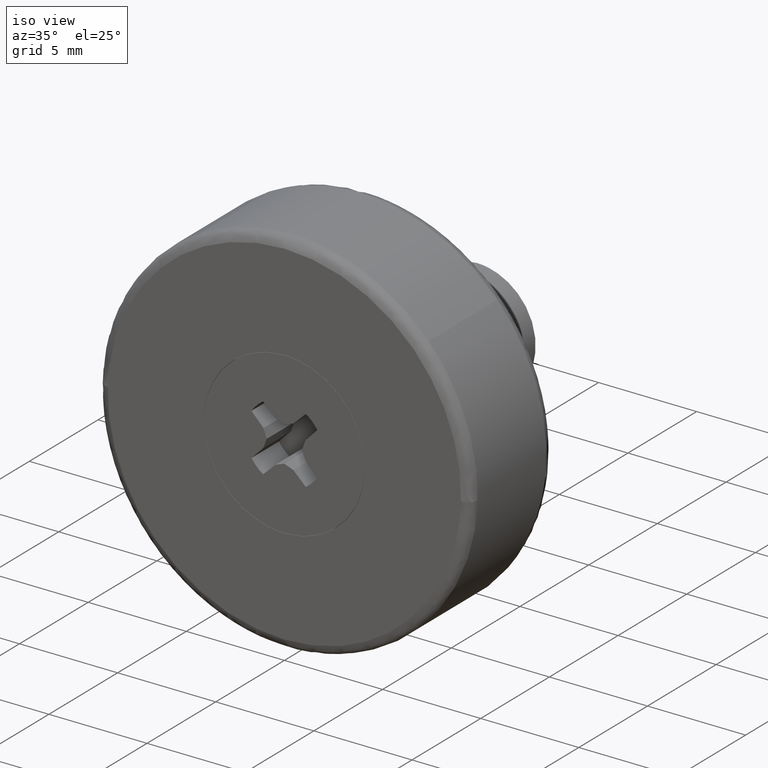
[diagram: clean part render]
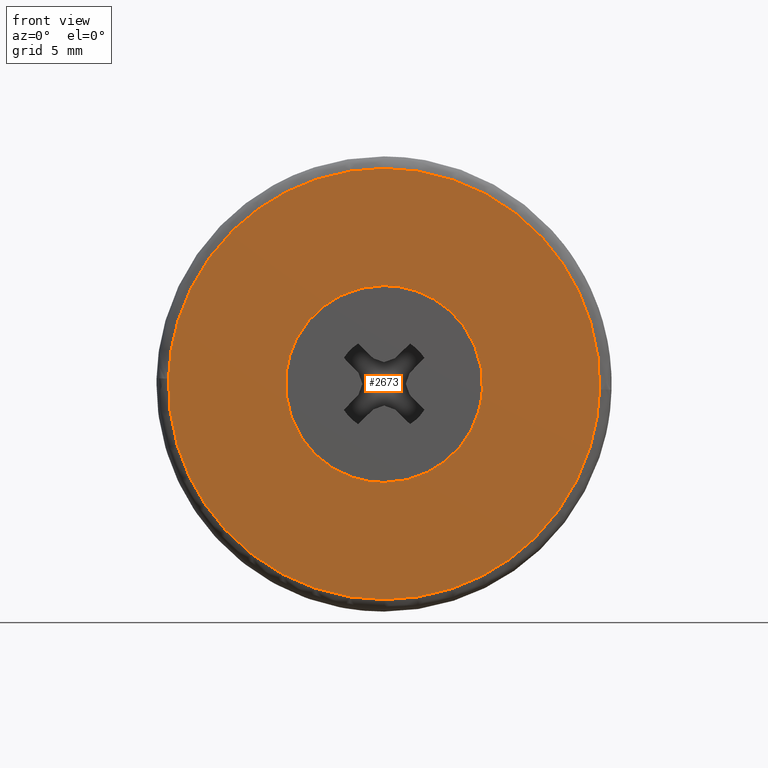
[diagram: tour spotlight — one face highlighted and labeled with its STEP entity id]
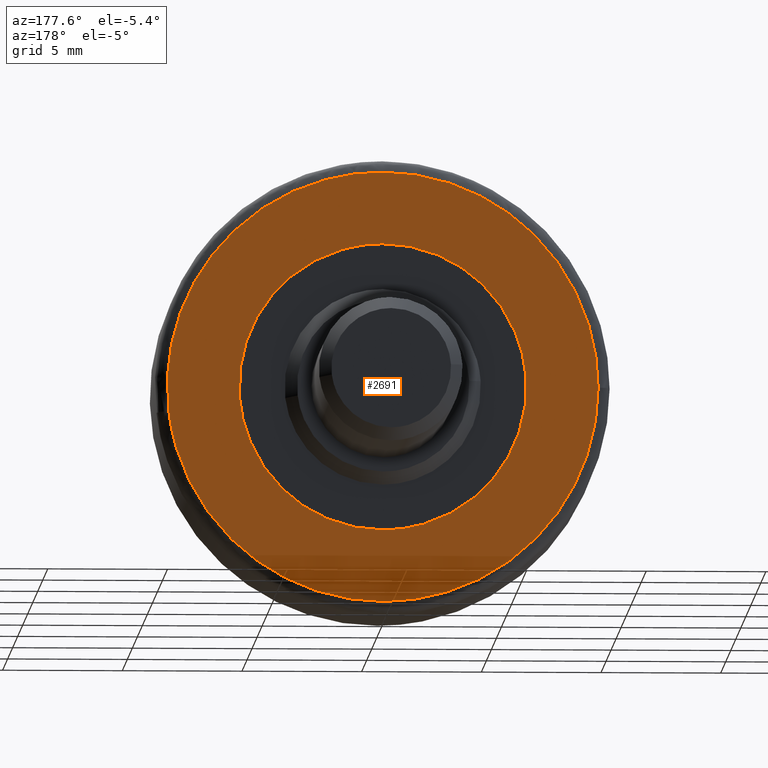
[diagram: tour spotlight — one face highlighted and labeled with its STEP entity id]
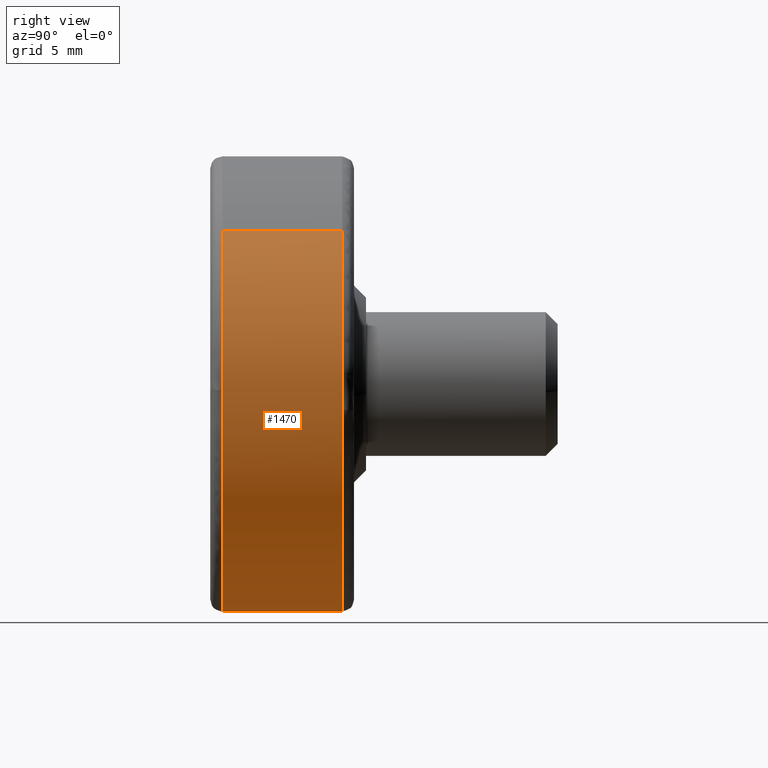
[diagram: tour spotlight — one face highlighted and labeled with its STEP entity id]
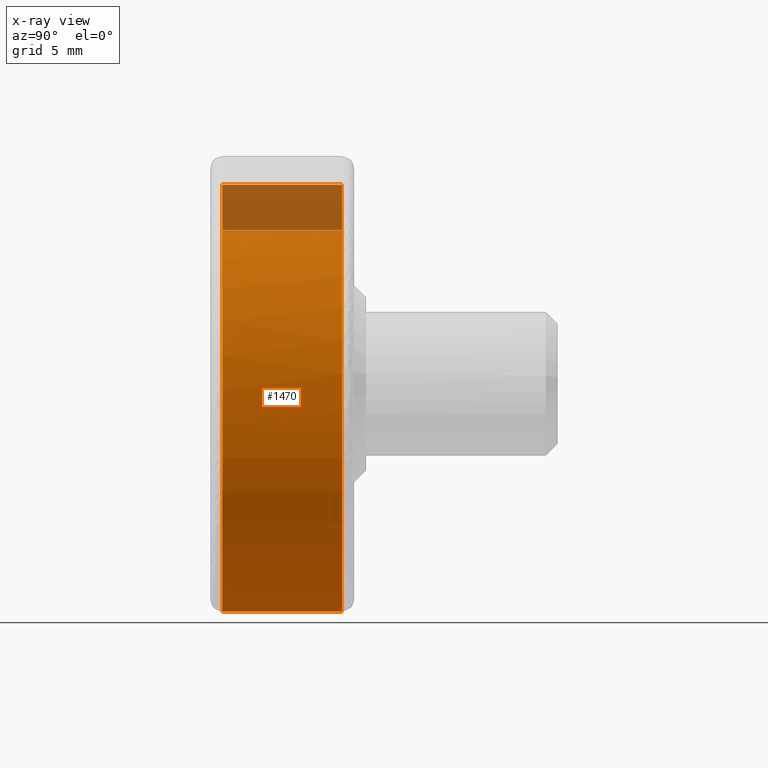
[diagram: x-ray of the same camera — body ghosted, this tour face saturated]
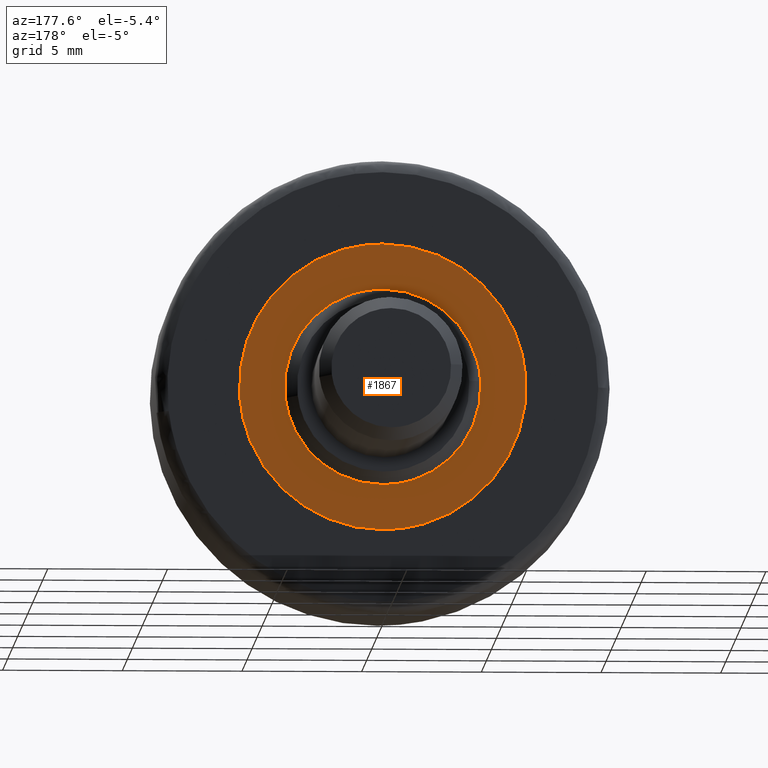
[diagram: tour spotlight — one face highlighted and labeled with its STEP entity id]
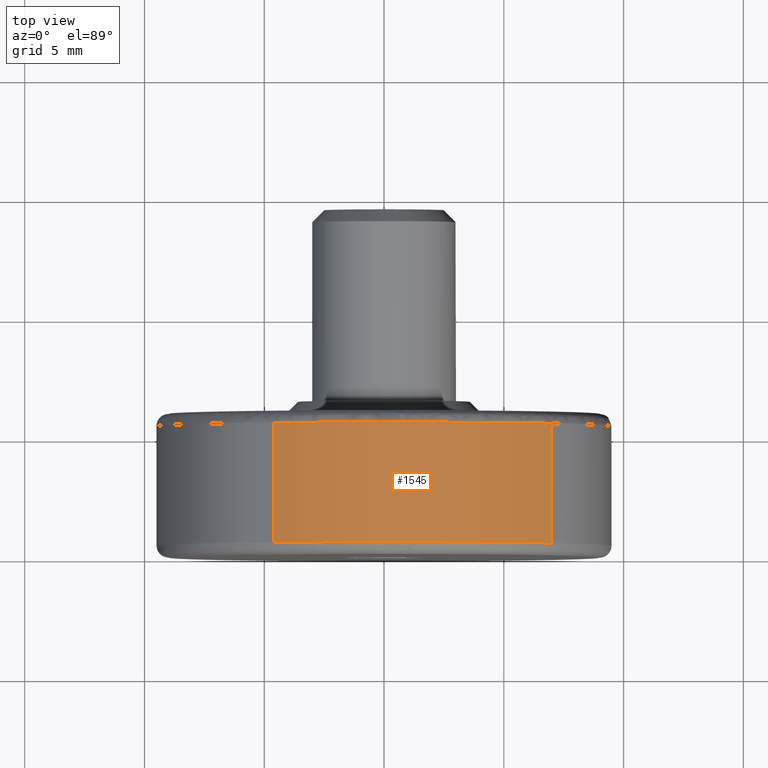
[diagram: tour spotlight — one face highlighted and labeled with its STEP entity id]
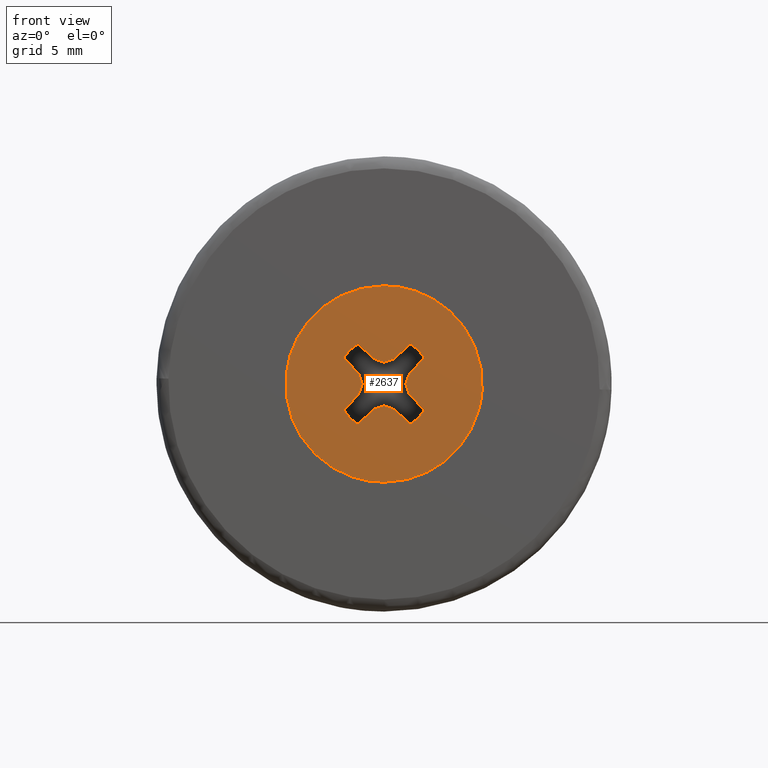
[diagram: tour spotlight — one face highlighted and labeled with its STEP entity id]
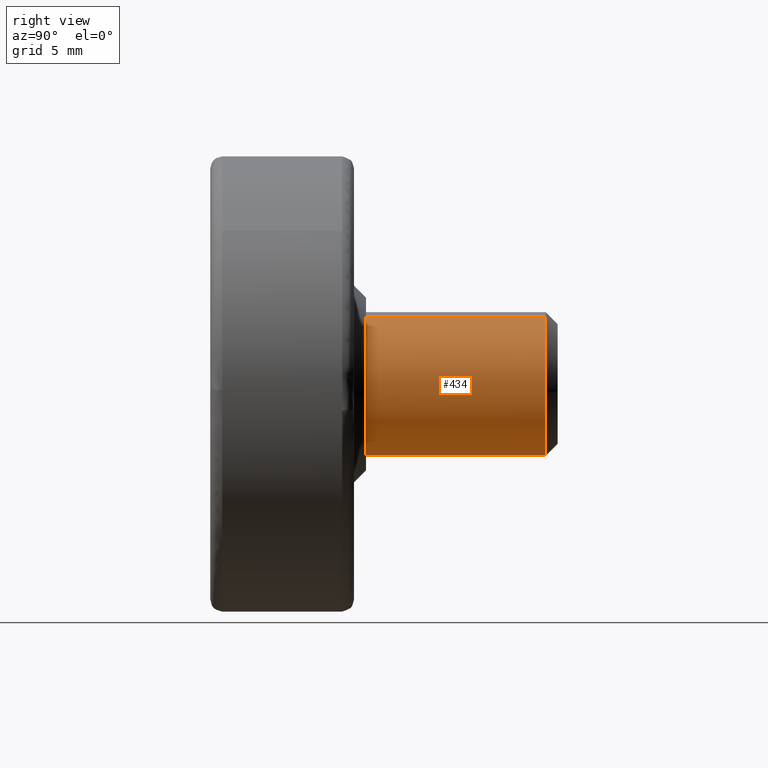
[diagram: tour spotlight — one face highlighted and labeled with its STEP entity id]
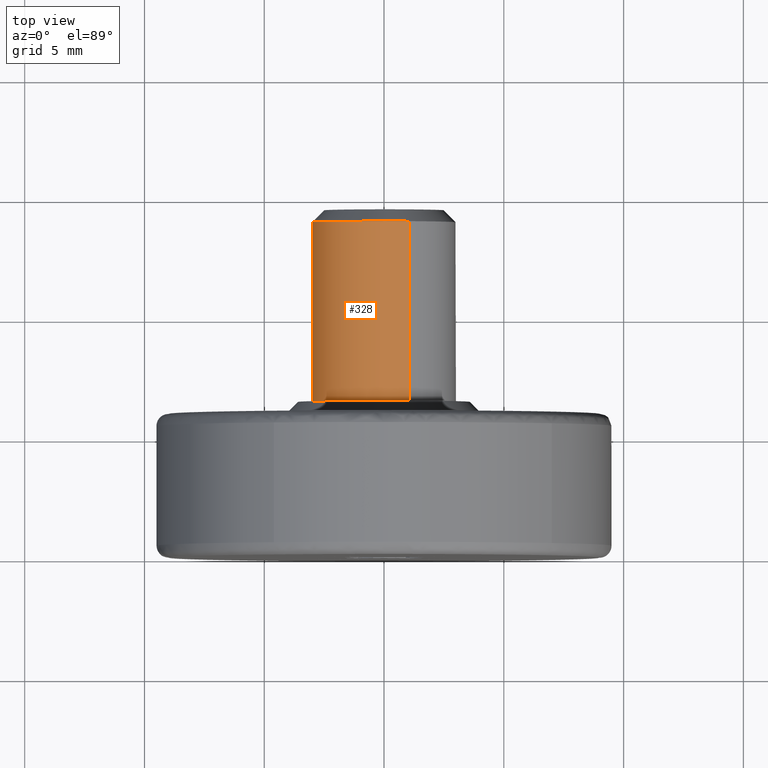
[diagram: tour spotlight — one face highlighted and labeled with its STEP entity id]
A machine part: a face-by-face anatomy tour. The part has 49 B-rep faces; the first image is the clean iso view, then the 8 largest visible faces are spotlighted one at a time (largest first), each with its STEP entity span.

Face 1 — front view, entity #2673. In plain terms, the highlighted face is a freeform B-spline surface patch.
Definition (entity closure, byte-faithful):
#967=CARTESIAN_POINT('',(-4.081269324250505,-1.845628E-016,0.485119266706369));
#968=VERTEX_POINT('',#967);
#974=CARTESIAN_POINT('',(0.0,0.0,-4.110000000000000));
#975=VERTEX_POINT('',#974);
#976=CARTESIAN_POINT('',(-4.081269324250505,-1.845628E-016,0.485119266706369));
#977=CARTESIAN_POINT('',(-4.110000000000000,0.0,0.243410405303170));
#978=CARTESIAN_POINT('',(-4.110000000000000,0.0,0.0));
#979=CARTESIAN_POINT('',(-4.110000000000000,0.0,-4.110000000000000));
#980=CARTESIAN_POINT('',(0.0,0.0,-4.110000000000000));
#988=(BOUNDED_CURVE()B_SPLINE_CURVE(2,(#976,#977,#978,#979,#980),.UNSPECIFIED.,.F.,.U.)B_SPLINE_CURVE_WITH_KNOTS((3,2,3),(0.229562533051423,0.250000000000000,0.500000000000000),.UNSPECIFIED.)CURVE()GEOMETRIC_REPRESENTATION_ITEM()RATIONAL_B_SPLINE_CURVE((0.956026870880483,0.976056018084151,1.0,0.707106781186547,1.0))REPRESENTATION_ITEM(''));
#989=EDGE_CURVE('',#968,#975,#988,.T.);
#991=CARTESIAN_POINT('',(4.102334321413232,-1.804112E-016,-0.250904594080903));
#992=VERTEX_POINT('',#991);
#993=CARTESIAN_POINT('',(0.0,0.0,-4.110000000000000));
#994=CARTESIAN_POINT('',(3.866306564905083,0.0,-4.109999999999999));
#995=CARTESIAN_POINT('',(4.102334321413232,-1.804112E-016,-0.250904594080903));
#1003=(BOUNDED_CURVE()B_SPLINE_CURVE(2,(#993,#994,#995),.UNSPECIFIED.,.F.,.U.)B_SPLINE_CURVE_WITH_KNOTS((3,3),(0.500000000000000,0.739333168482446),.UNSPECIFIED.)CURVE()GEOMETRIC_REPRESENTATION_ITEM()RATIONAL_B_SPLINE_CURVE((1.0,0.719603751657416,0.976072483686204))REPRESENTATION_ITEM(''));
#1004=EDGE_CURVE('',#975,#992,#1003,.T.);
#1078=CARTESIAN_POINT('',(0.0,0.0,4.110000000000000));
#1079=VERTEX_POINT('',#1078);
#1080=CARTESIAN_POINT('',(4.102334321413232,-1.804112E-016,-0.250904594080903));
#1081=CARTESIAN_POINT('',(4.110000000000001,0.0,-0.125569398579407));
#1082=CARTESIAN_POINT('',(4.110000000000000,0.0,0.0));
#1083=CARTESIAN_POINT('',(4.110000000000000,0.0,4.110000000000000));
#1084=CARTESIAN_POINT('',(0.0,0.0,4.110000000000000));
#1092=(BOUNDED_CURVE()B_SPLINE_CURVE(2,(#1080,#1081,#1082,#1083,#1084),.UNSPECIFIED.,.F.,.U.)B_SPLINE_CURVE_WITH_KNOTS((3,2,3),(0.739333168482446,0.750000000000000,1.0),.UNSPECIFIED.)CURVE()GEOMETRIC_REPRESENTATION_ITEM()RATIONAL_B_SPLINE_CURVE((0.976072483686204,0.987503029529131,1.0,0.707106781186547,1.0))REPRESENTATION_ITEM(''));
#1093=EDGE_CURVE('',#992,#1079,#1092,.T.);
#1095=CARTESIAN_POINT('',(0.0,0.0,4.110000000000000));
#1096=CARTESIAN_POINT('',(-3.650398596660055,0.0,4.110000000000000));
#1097=CARTESIAN_POINT('',(-4.081269324250505,-1.845628E-016,0.485119266706369));
#1105=(BOUNDED_CURVE()B_SPLINE_CURVE(2,(#1095,#1096,#1097),.UNSPECIFIED.,.F.,.U.)B_SPLINE_CURVE_WITH_KNOTS((3,3),(0.0,0.229562533051423),.UNSPECIFIED.)CURVE()GEOMETRIC_REPRESENTATION_ITEM()RATIONAL_B_SPLINE_CURVE((1.0,0.731050763102396,0.956026870880483))REPRESENTATION_ITEM(''));
#1106=EDGE_CURVE('',#1079,#968,#1105,.T.);
#1569=CARTESIAN_POINT('',(-8.997157704102083,-7.545715E-016,0.226170859018032));
#1570=VERTEX_POINT('',#1569);
#1571=CARTESIAN_POINT('',(0.0,-1.665335E-015,-9.0));
#1572=VERTEX_POINT('',#1571);
#1573=CARTESIAN_POINT('',(-8.997157704102083,-7.545715E-016,0.226170859018032));
#1574=CARTESIAN_POINT('',(-9.0,-1.665335E-015,0.113103289124523));
#1575=CARTESIAN_POINT('',(-9.0,-1.665335E-015,-1.552808E-016));
#1576=CARTESIAN_POINT('',(-9.0,-1.665335E-015,-9.0));
#1577=CARTESIAN_POINT('',(0.0,-1.665335E-015,-9.0));
#1585=(BOUNDED_CURVE()B_SPLINE_CURVE(2,(#1573,#1574,#1575,#1576,#1577),.UNSPECIFIED.,.F.,.U.)B_SPLINE_CURVE_WITH_KNOTS((3,2,3),(0.745579891769259,0.750000000000000,1.0),.UNSPECIFIED.)CURVE()GEOMETRIC_REPRESENTATION_ITEM()RATIONAL_B_SPLINE_CURVE((0.989826157680336,0.994821521091178,1.0,0.707106781186547,1.0))REPRESENTATION_ITEM(''));
#1586=EDGE_CURVE('',#1570,#1572,#1585,.T.);
#1603=CARTESIAN_POINT('',(8.997157704102083,-7.389523E-016,-0.226170859018029));
#1604=VERTEX_POINT('',#1603);
#1618=CARTESIAN_POINT('',(0.0,-1.665335E-015,-9.0));
#1619=CARTESIAN_POINT('',(8.776600885598329,-1.665335E-015,-9.000000000000002));
#1620=CARTESIAN_POINT('',(8.997157704102083,-7.389523E-016,-0.226170859018029));
#1628=(BOUNDED_CURVE()B_SPLINE_CURVE(2,(#1618,#1619,#1620),.UNSPECIFIED.,.F.,.U.)B_SPLINE_CURVE_WITH_KNOTS((3,3),(0.0,0.245579891769259),.UNSPECIFIED.)CURVE()GEOMETRIC_REPRESENTATION_ITEM()RATIONAL_B_SPLINE_CURVE((1.0,0.712285260095370,0.989826157680337))REPRESENTATION_ITEM(''));
#1629=EDGE_CURVE('',#1572,#1604,#1628,.T.);
#1657=CARTESIAN_POINT('',(0.0,-1.665335E-015,9.0));
#1658=VERTEX_POINT('',#1657);
#1659=CARTESIAN_POINT('',(0.0,-1.665335E-015,9.0));
#1660=CARTESIAN_POINT('',(-8.776600885598302,-1.665335E-015,9.0));
#1661=CARTESIAN_POINT('',(-8.997157704102083,-7.545715E-016,0.226170859018032));
#1669=(BOUNDED_CURVE()B_SPLINE_CURVE(2,(#1659,#1660,#1661),.UNSPECIFIED.,.F.,.U.)B_SPLINE_CURVE_WITH_KNOTS((3,3),(0.500000000000000,0.745579891769259),.UNSPECIFIED.)CURVE()GEOMETRIC_REPRESENTATION_ITEM()RATIONAL_B_SPLINE_CURVE((1.0,0.712285260095370,0.989826157680335))REPRESENTATION_ITEM(''));
#1670=EDGE_CURVE('',#1658,#1570,#1669,.T.);
#1672=CARTESIAN_POINT('',(8.997157704102083,-7.389523E-016,-0.226170859018029));
#1673=CARTESIAN_POINT('',(9.000000000000002,-1.665335E-015,-0.113103289124521));
#1674=CARTESIAN_POINT('',(9.0,-1.665335E-015,-1.552808E-016));
#1675=CARTESIAN_POINT('',(9.0,-1.665335E-015,9.0));
#1676=CARTESIAN_POINT('',(0.0,-1.665335E-015,9.0));
#1684=(BOUNDED_CURVE()B_SPLINE_CURVE(2,(#1672,#1673,#1674,#1675,#1676),.UNSPECIFIED.,.F.,.U.)B_SPLINE_CURVE_WITH_KNOTS((3,2,3),(0.245579891769259,0.250000000000000,0.500000000000000),.UNSPECIFIED.)CURVE()GEOMETRIC_REPRESENTATION_ITEM()RATIONAL_B_SPLINE_CURVE((0.989826157680337,0.994821521091178,1.0,0.707106781186547,1.0))REPRESENTATION_ITEM(''));
#1685=EDGE_CURVE('',#1604,#1658,#1684,.T.);
#2656=CARTESIAN_POINT('',(-9.895974061700919,-8.326673E-016,-9.899099965112507));
#2657=CARTESIAN_POINT('',(-9.895974061700919,-8.326673E-016,9.899100447910129));
#2658=CARTESIAN_POINT('',(9.895974222582636,-8.326673E-016,-9.899099965112507));
#2659=CARTESIAN_POINT('',(9.895974222582636,-8.326673E-016,9.899100447910129));
#2660=B_SPLINE_SURFACE_WITH_KNOTS('',1,1,((#2656,#2658),(#2657,#2659)),.UNSPECIFIED.,.F.,.F.,.U.,(2,2),(2,2),(0.0,19.798200413022631),(0.0,19.791948284283560),.UNSPECIFIED.);
#2661=ORIENTED_EDGE('',*,*,#1629,.T.);
#2662=ORIENTED_EDGE('',*,*,#1685,.T.);
#2663=ORIENTED_EDGE('',*,*,#1670,.T.);
#2664=ORIENTED_EDGE('',*,*,#1586,.T.);
#2665=EDGE_LOOP('',(#2661,#2662,#2663,#2664));
#2666=FACE_OUTER_BOUND('',#2665,.T.);
#2667=ORIENTED_EDGE('',*,*,#1004,.F.);
#2668=ORIENTED_EDGE('',*,*,#989,.F.);
#2669=ORIENTED_EDGE('',*,*,#1106,.F.);
#2670=ORIENTED_EDGE('',*,*,#1093,.F.);
#2671=EDGE_LOOP('',(#2667,#2668,#2669,#2670));
#2672=FACE_BOUND('',#2671,.T.);
#2673=ADVANCED_FACE('',(#2666,#2672),#2660,.F.);

Face 2 — auxiliary view, entity #2691. In plain terms, the highlighted face is a freeform B-spline surface patch.
Definition (entity closure, byte-faithful):
#597=CARTESIAN_POINT('',(-5.981504628515259,6.0,0.470746618667448));
#598=VERTEX_POINT('',#597);
#604=CARTESIAN_POINT('',(0.0,6.0,6.0));
#605=VERTEX_POINT('',#604);
#606=CARTESIAN_POINT('',(0.0,6.0,6.0));
#607=CARTESIAN_POINT('',(-5.546350349677546,6.0,6.0));
#608=CARTESIAN_POINT('',(-5.981504628515259,6.0,0.470746618667448));
#616=(BOUNDED_CURVE()B_SPLINE_CURVE(2,(#606,#607,#608),.UNSPECIFIED.,.F.,.U.)B_SPLINE_CURVE_WITH_KNOTS((3,3),(0.0,0.236331528635949),.UNSPECIFIED.)CURVE()GEOMETRIC_REPRESENTATION_ITEM()RATIONAL_B_SPLINE_CURVE((1.0,0.723120391482854,0.969723831997549))REPRESENTATION_ITEM(''));
#617=EDGE_CURVE('',#605,#598,#616,.T.);
#619=CARTESIAN_POINT('',(5.981504628515259,6.0,-0.470746618667448));
#620=VERTEX_POINT('',#619);
#621=CARTESIAN_POINT('',(5.981504628515259,6.0,-0.470746618667448));
#622=CARTESIAN_POINT('',(6.0,6.0,-0.235736645736784));
#623=CARTESIAN_POINT('',(6.0,6.0,0.0));
#624=CARTESIAN_POINT('',(6.0,6.0,6.0));
#625=CARTESIAN_POINT('',(0.0,6.0,6.0));
#633=(BOUNDED_CURVE()B_SPLINE_CURVE(2,(#621,#622,#623,#624,#625),.UNSPECIFIED.,.F.,.U.)B_SPLINE_CURVE_WITH_KNOTS((3,2,3),(0.736331528635949,0.750000000000000,1.0),.UNSPECIFIED.)CURVE()GEOMETRIC_REPRESENTATION_ITEM()RATIONAL_B_SPLINE_CURVE((0.969723831997549,0.983986389703694,1.0,0.707106781186548,1.0))REPRESENTATION_ITEM(''));
#634=EDGE_CURVE('',#620,#605,#633,.T.);
#710=CARTESIAN_POINT('',(0.0,6.0,-6.0));
#711=VERTEX_POINT('',#710);
#712=CARTESIAN_POINT('',(0.0,6.0,-6.0));
#713=CARTESIAN_POINT('',(5.546350349677546,6.0,-6.0));
#714=CARTESIAN_POINT('',(5.981504628515259,6.0,-0.470746618667448));
#722=(BOUNDED_CURVE()B_SPLINE_CURVE(2,(#712,#713,#714),.UNSPECIFIED.,.F.,.U.)B_SPLINE_CURVE_WITH_KNOTS((3,3),(0.500000000000000,0.736331528635949),.UNSPECIFIED.)CURVE()GEOMETRIC_REPRESENTATION_ITEM()RATIONAL_B_SPLINE_CURVE((1.0,0.723120391482854,0.969723831997549))REPRESENTATION_ITEM(''));
#723=EDGE_CURVE('',#711,#620,#722,.T.);
#725=CARTESIAN_POINT('',(-5.981504628515259,6.0,0.470746618667448));
#726=CARTESIAN_POINT('',(-6.0,6.0,0.235736645736784));
#727=CARTESIAN_POINT('',(-6.0,6.0,0.0));
#728=CARTESIAN_POINT('',(-6.0,6.0,-6.0));
#729=CARTESIAN_POINT('',(0.0,6.0,-6.0));
#737=(BOUNDED_CURVE()B_SPLINE_CURVE(2,(#725,#726,#727,#728,#729),.UNSPECIFIED.,.F.,.U.)B_SPLINE_CURVE_WITH_KNOTS((3,2,3),(0.236331528635949,0.250000000000000,0.500000000000000),.UNSPECIFIED.)CURVE()GEOMETRIC_REPRESENTATION_ITEM()RATIONAL_B_SPLINE_CURVE((0.969723831997549,0.983986389703694,1.0,0.707106781186548,1.0))REPRESENTATION_ITEM(''));
#738=EDGE_CURVE('',#598,#711,#737,.T.);
#1727=CARTESIAN_POINT('',(8.939804749547164,5.999999999999999,-1.039178064013100));
#1728=VERTEX_POINT('',#1727);
#1742=CARTESIAN_POINT('',(0.0,6.0,9.0));
#1743=VERTEX_POINT('',#1742);
#1744=CARTESIAN_POINT('',(8.939804749547164,5.999999999999999,-1.039178064013100));
#1745=CARTESIAN_POINT('',(9.0,6.000000000000001,-0.521332461894320));
#1746=CARTESIAN_POINT('',(9.0,6.0,-1.552808E-016));
#1747=CARTESIAN_POINT('',(9.0,6.0,9.0));
#1748=CARTESIAN_POINT('',(0.0,6.0,9.0));
#1756=(BOUNDED_CURVE()B_SPLINE_CURVE(2,(#1744,#1745,#1746,#1747,#1748),.UNSPECIFIED.,.F.,.U.)B_SPLINE_CURVE_WITH_KNOTS((3,2,3),(0.229999999999497,0.250000000000000,0.500000000000000),.UNSPECIFIED.)CURVE()GEOMETRIC_REPRESENTATION_ITEM()RATIONAL_B_SPLINE_CURVE((0.956886118189670,0.976568542494334,1.0,0.707106781186547,1.0))REPRESENTATION_ITEM(''));
#1757=EDGE_CURVE('',#1728,#1743,#1756,.T.);
#1759=CARTESIAN_POINT('',(-9.000000000022807,6.0,4.426226E-016));
#1760=VERTEX_POINT('',#1759);
#1761=CARTESIAN_POINT('',(0.0,6.0,9.0));
#1762=CARTESIAN_POINT('',(-8.999999999999957,6.0,9.000000000000002));
#1763=CARTESIAN_POINT('',(-9.000000000022807,5.999999999999999,4.426226E-016));
#1771=(BOUNDED_CURVE()B_SPLINE_CURVE(2,(#1761,#1762,#1763),.UNSPECIFIED.,.F.,.U.)B_SPLINE_CURVE_WITH_KNOTS((3,3),(0.500000000000000,0.749999999999999),.UNSPECIFIED.)CURVE()GEOMETRIC_REPRESENTATION_ITEM()RATIONAL_B_SPLINE_CURVE((1.0,0.707106781186548,0.999999999999998))REPRESENTATION_ITEM(''));
#1772=EDGE_CURVE('',#1743,#1760,#1771,.T.);
#1818=CARTESIAN_POINT('',(0.0,6.0,-9.0));
#1819=VERTEX_POINT('',#1818);
#1820=CARTESIAN_POINT('',(-9.000000000022807,6.0,4.426226E-016));
#1821=CARTESIAN_POINT('',(-9.0,6.0,-9.0));
#1822=CARTESIAN_POINT('',(0.0,6.0,-9.0));
#1830=(BOUNDED_CURVE()B_SPLINE_CURVE(2,(#1820,#1821,#1822),.UNSPECIFIED.,.F.,.U.)B_SPLINE_CURVE_WITH_KNOTS((3,3),(0.750000000000000,1.0),.UNSPECIFIED.)CURVE()GEOMETRIC_REPRESENTATION_ITEM()RATIONAL_B_SPLINE_CURVE((1.0,0.707106781186547,1.0))REPRESENTATION_ITEM(''));
#1831=EDGE_CURVE('',#1760,#1819,#1830,.T.);
#1833=CARTESIAN_POINT('',(0.0,6.0,-9.0));
#1834=CARTESIAN_POINT('',(8.014425307418494,6.000000000000001,-9.0));
#1835=CARTESIAN_POINT('',(8.939804749547164,5.999999999999999,-1.039178064013100));
#1843=(BOUNDED_CURVE()B_SPLINE_CURVE(2,(#1833,#1834,#1835),.UNSPECIFIED.,.F.,.U.)B_SPLINE_CURVE_WITH_KNOTS((3,3),(0.0,0.229999999999497),.UNSPECIFIED.)CURVE()GEOMETRIC_REPRESENTATION_ITEM()RATIONAL_B_SPLINE_CURVE((1.0,0.730538238692213,0.956886118189670))REPRESENTATION_ITEM(''));
#1844=EDGE_CURVE('',#1819,#1728,#1843,.T.);
#2674=CARTESIAN_POINT('',(-9.899097538366979,6.0,9.899099965112507));
#2675=CARTESIAN_POINT('',(-9.899097538366979,6.0,-9.899100447910129));
#2676=CARTESIAN_POINT('',(9.899049436877284,6.0,9.899099965112507));
#2677=CARTESIAN_POINT('',(9.899049436877284,6.0,-9.899100447910129));
#2678=B_SPLINE_SURFACE_WITH_KNOTS('',1,1,((#2674,#2676),(#2675,#2677)),.UNSPECIFIED.,.F.,.F.,.U.,(2,2),(2,2),(0.0,19.798200413022631),(0.0,19.798146975244268),.UNSPECIFIED.);
#2679=ORIENTED_EDGE('',*,*,#1831,.F.);
#2680=ORIENTED_EDGE('',*,*,#1772,.F.);
#2681=ORIENTED_EDGE('',*,*,#1757,.F.);
#2682=ORIENTED_EDGE('',*,*,#1844,.F.);
#2683=EDGE_LOOP('',(#2679,#2680,#2681,#2682));
#2684=FACE_OUTER_BOUND('',#2683,.T.);
#2685=ORIENTED_EDGE('',*,*,#723,.T.);
#2686=ORIENTED_EDGE('',*,*,#634,.T.);
#2687=ORIENTED_EDGE('',*,*,#617,.T.);
#2688=ORIENTED_EDGE('',*,*,#738,.T.);
#2689=EDGE_LOOP('',(#2685,#2686,#2687,#2688));
#2690=FACE_BOUND('',#2689,.T.);
#2691=ADVANCED_FACE('',(#2684,#2690),#2678,.F.);

Face 3 — right view, entity #1470. An x-ray twin of the same camera follows (body ghosted, this face saturated) — the face is partly hidden behind the body. In plain terms, the highlighted face is a freeform B-spline surface patch.
Definition (entity closure, byte-faithful):
#1302=CARTESIAN_POINT('',(-4.600087456416605,5.625000000084011,8.311991060709735));
#1303=CARTESIAN_POINT('',(-5.586718292504981,5.625000000084013,7.765962064762231));
#1304=CARTESIAN_POINT('',(-6.418106972348770,5.625000000084012,7.004134699696176));
#1305=CARTESIAN_POINT('',(-13.422241672044946,5.625000000084011,0.586027727347406));
#1306=CARTESIAN_POINT('',(-7.004134699696176,5.625000000084012,-6.418106972348770));
#1307=CARTESIAN_POINT('',(-0.586027727347406,5.625000000084011,-13.422241672044946));
#1308=CARTESIAN_POINT('',(6.418106972348770,5.625000000084012,-7.004134699696176));
#1309=CARTESIAN_POINT('',(13.422241672044946,5.625000000084011,-0.586027727347406));
#1310=CARTESIAN_POINT('',(7.004134699696176,5.625000000084012,6.418106972348770));
#1311=CARTESIAN_POINT('',(-4.600087456416605,0.371874999853670,8.311991060709735));
#1312=CARTESIAN_POINT('',(-5.586718292504981,0.371874999853670,7.765962064762231));
#1313=CARTESIAN_POINT('',(-6.418106972348770,0.371874999853670,7.004134699696176));
#1314=CARTESIAN_POINT('',(-13.422241672044946,0.371874999853670,0.586027727347406));
#1315=CARTESIAN_POINT('',(-7.004134699696176,0.371874999853670,-6.418106972348770));
#1316=CARTESIAN_POINT('',(-0.586027727347406,0.371874999853670,-13.422241672044946));
#1317=CARTESIAN_POINT('',(6.418106972348770,0.371874999853670,-7.004134699696176));
#1318=CARTESIAN_POINT('',(13.422241672044946,0.371874999853670,-0.586027727347406));
#1319=CARTESIAN_POINT('',(7.004134699696176,0.371874999853670,6.418106972348770));
#1327=(BOUNDED_SURFACE()B_SPLINE_SURFACE(2,1,((#1302,#1311),(#1303,#1312),(#1304,#1313),(#1305,#1314),(#1306,#1315),(#1307,#1316),(#1308,#1317),(#1309,#1318),(#1310,#1319)),.UNSPECIFIED.,.F.,.F.,.U.)B_SPLINE_SURFACE_WITH_KNOTS((3,2,2,2,3),(2,2),(0.0,2.518418459228419,18.258533829406030,33.998649199583639,49.738764569761251),(0.0,5.253125000230342),.UNSPECIFIED.)GEOMETRIC_REPRESENTATION_ITEM()RATIONAL_B_SPLINE_SURFACE(((0.921270302782944,0.921270302782944),(0.953137084989848,0.953137084989848),(1.0,1.0),(0.707106781186548,0.707106781186548),(1.0,1.0),(0.707106781186548,0.707106781186548),(1.0,1.0),(0.707106781186548,0.707106781186548),(1.0,1.0)))REPRESENTATION_ITEM('')SURFACE());
#1328=CARTESIAN_POINT('',(-4.600085988359925,0.499999999981940,8.311991873172854));
#1329=VERTEX_POINT('',#1328);
#1330=CARTESIAN_POINT('',(-9.496999798191341,0.499999999859289,0.238735906711980));
#1331=VERTEX_POINT('',#1330);
#1332=CARTESIAN_POINT('',(-4.600085988359925,0.499999999981940,8.311991873172854));
#1333=CARTESIAN_POINT('',(-9.360278201085677,0.499999999941924,5.677569963987287));
#1334=CARTESIAN_POINT('',(-9.496999798191341,0.499999999859289,0.238735906711980));
#1342=(BOUNDED_CURVE()B_SPLINE_CURVE(2,(#1332,#1333,#1334),.UNSPECIFIED.,.F.,.U.)B_SPLINE_CURVE_WITH_KNOTS((3,3),(0.582484261791916,0.745579891769798),.UNSPECIFIED.)CURVE()GEOMETRIC_REPRESENTATION_ITEM()RATIONAL_B_SPLINE_CURVE((0.870495159113431,0.805504439765904,0.989826157681555))REPRESENTATION_ITEM(''));
#1343=EDGE_CURVE('',#1329,#1331,#1342,.T.);
#1344=ORIENTED_EDGE('',*,*,#1343,.F.);
#1345=CARTESIAN_POINT('',(-4.600085936569775,5.500000000009822,8.311991901834954));
#1346=VERTEX_POINT('',#1345);
#1347=CARTESIAN_POINT('',(-4.600085936569775,5.500000000009822,8.311991901834954));
#1348=CARTESIAN_POINT('',(-4.600085988359925,0.499999999981940,8.311991873172854));
#1349=QUASI_UNIFORM_CURVE('',1,(#1347,#1348),.UNSPECIFIED.,.F.,.U.);
#1350=EDGE_CURVE('',#1346,#1329,#1349,.T.);
#1351=ORIENTED_EDGE('',*,*,#1350,.F.);
#1352=CARTESIAN_POINT('',(-9.499999999999996,5.500000000078531,3.107089E-015));
#1353=VERTEX_POINT('',#1352);
#1354=CARTESIAN_POINT('',(-4.600085936569776,5.500000000009822,8.311991901834954));
#1355=CARTESIAN_POINT('',(-9.499999999999970,5.500000000032238,5.600244099408878));
#1356=CARTESIAN_POINT('',(-9.499999999999996,5.500000000078531,3.107089E-015));
#1364=(BOUNDED_CURVE()B_SPLINE_CURVE(2,(#1354,#1355,#1356),.UNSPECIFIED.,.F.,.U.)B_SPLINE_CURVE_WITH_KNOTS((3,3),(0.582484260833104,0.749999999999999),.UNSPECIFIED.)CURVE()GEOMETRIC_REPRESENTATION_ITEM()RATIONAL_B_SPLINE_CURVE((0.870495159877570,0.803743103813973,0.999999999999998))REPRESENTATION_ITEM(''));
#1365=EDGE_CURVE('',#1346,#1353,#1364,.T.);
#1366=ORIENTED_EDGE('',*,*,#1365,.T.);
#1367=CARTESIAN_POINT('',(0.0,5.500000000000000,-9.500000000000000));
#1368=VERTEX_POINT('',#1367);
#1369=CARTESIAN_POINT('',(-9.500000000000000,5.500000000078534,3.107089E-015));
#1370=CARTESIAN_POINT('',(-9.500000000000005,5.500000000000000,-9.499999999999998));
#1371=CARTESIAN_POINT('',(0.0,5.500000000000000,-9.500000000000000));
#1379=(BOUNDED_CURVE()B_SPLINE_CURVE(2,(#1369,#1370,#1371),.UNSPECIFIED.,.F.,.U.)B_SPLINE_CURVE_WITH_KNOTS((3,3),(0.750000000000000,1.0),.UNSPECIFIED.)CURVE()GEOMETRIC_REPRESENTATION_ITEM()RATIONAL_B_SPLINE_CURVE((1.0,0.707106781186547,1.0))REPRESENTATION_ITEM(''));
#1380=EDGE_CURVE('',#1353,#1368,#1379,.T.);
#1381=ORIENTED_EDGE('',*,*,#1380,.T.);
#1382=CARTESIAN_POINT('',(9.436460568457928,5.500000000077355,-1.096910178610184));
#1383=VERTEX_POINT('',#1382);
#1384=CARTESIAN_POINT('',(0.0,5.500000000000000,-9.500000000000000));
#1385=CARTESIAN_POINT('',(8.459671157850583,5.500000000000000,-9.499999999999998));
#1386=CARTESIAN_POINT('',(9.436460568457928,5.500000000077355,-1.096910178610185));
#1394=(BOUNDED_CURVE()B_SPLINE_CURVE(2,(#1384,#1385,#1386),.UNSPECIFIED.,.F.,.U.)B_SPLINE_CURVE_WITH_KNOTS((3,3),(0.0,0.229999999999893),.UNSPECIFIED.)CURVE()GEOMETRIC_REPRESENTATION_ITEM()RATIONAL_B_SPLINE_CURVE((1.0,0.730538238691749,0.956886118190449))REPRESENTATION_ITEM(''));
#1395=EDGE_CURVE('',#1368,#1383,#1394,.T.);
#1396=ORIENTED_EDGE('',*,*,#1395,.T.);
#1397=CARTESIAN_POINT('',(7.004135044492157,5.500000000000000,6.418106596069947));
#1398=VERTEX_POINT('',#1397);
#1399=CARTESIAN_POINT('',(9.436460568457928,5.500000000077355,-1.096910178610185));
#1400=CARTESIAN_POINT('',(9.500000000000000,5.500000000000000,-0.550295376432844));
#1401=CARTESIAN_POINT('',(9.500000000000000,5.500000000000000,-1.552808E-016));
#1402=CARTESIAN_POINT('',(9.500000000000000,5.500000000000001,3.694347365060328));
#1403=CARTESIAN_POINT('',(7.004135044492157,5.500000000000000,6.418106596069947));
#1411=(BOUNDED_CURVE()B_SPLINE_CURVE(2,(#1399,#1400,#1401,#1402,#1403),.UNSPECIFIED.,.F.,.U.)B_SPLINE_CURVE_WITH_KNOTS((3,2,3),(0.229999999999893,0.250000000000000,0.368415192864189),.UNSPECIFIED.)CURVE()GEOMETRIC_REPRESENTATION_ITEM()RATIONAL_B_SPLINE_CURVE((0.956886118190449,0.976568542494799,1.0,0.861267972022367,0.853959782840026))REPRESENTATION_ITEM(''));
#1412=EDGE_CURVE('',#1383,#1398,#1411,.T.);
#1413=ORIENTED_EDGE('',*,*,#1412,.T.);
#1414=CARTESIAN_POINT('',(7.004135048799357,0.500000000000003,6.418106591369461));
#1415=VERTEX_POINT('',#1414);
#1416=CARTESIAN_POINT('',(7.004135044492157,5.500000000000000,6.418106596069947));
#1417=CARTESIAN_POINT('',(7.004135048799357,0.500000000000003,6.418106591369461));
#1418=QUASI_UNIFORM_CURVE('',1,(#1416,#1417),.UNSPECIFIED.,.F.,.U.);
#1419=EDGE_CURVE('',#1398,#1415,#1418,.T.);
#1420=ORIENTED_EDGE('',*,*,#1419,.T.);
#1421=CARTESIAN_POINT('',(9.496999798191341,0.499999999859289,-0.238735906711978));
#1422=VERTEX_POINT('',#1421);
#1423=CARTESIAN_POINT('',(9.496999798191341,0.499999999859289,-0.238735906711978));
#1424=CARTESIAN_POINT('',(9.500000000000000,0.500000000000000,-0.119386805172379));
#1425=CARTESIAN_POINT('',(9.500000000000000,0.500000000000000,-1.552808E-016));
#1426=CARTESIAN_POINT('',(9.499999999999998,0.500000000000000,3.694347357720723));
#1427=CARTESIAN_POINT('',(7.004135048799357,0.500000000000003,6.418106591369461));
#1435=(BOUNDED_CURVE()B_SPLINE_CURVE(2,(#1423,#1424,#1425,#1426,#1427),.UNSPECIFIED.,.F.,.U.)B_SPLINE_CURVE_WITH_KNOTS((3,2,3),(0.245579891769798,0.250000000000000,0.368415192661570),.UNSPECIFIED.)CURVE()GEOMETRIC_REPRESENTATION_ITEM()RATIONAL_B_SPLINE_CURVE((0.989826157681553,0.994821521091809,1.0,0.861267972259750,0.853959782865036))REPRESENTATION_ITEM(''));
#1436=EDGE_CURVE('',#1422,#1415,#1435,.T.);
#1437=ORIENTED_EDGE('',*,*,#1436,.F.);
#1438=CARTESIAN_POINT('',(0.0,0.500000000000000,-9.500000000000000));
#1439=VERTEX_POINT('',#1438);
#1440=CARTESIAN_POINT('',(0.0,0.500000000000000,-9.500000000000000));
#1441=CARTESIAN_POINT('',(9.264189823715638,0.500000000000000,-9.499999999999998));
#1442=CARTESIAN_POINT('',(9.496999798191341,0.499999999859289,-0.238735906711978));
#1450=(BOUNDED_CURVE()B_SPLINE_CURVE(2,(#1440,#1441,#1442),.UNSPECIFIED.,.F.,.U.)B_SPLINE_CURVE_WITH_KNOTS((3,3),(0.0,0.245579891769798),.UNSPECIFIED.)CURVE()GEOMETRIC_REPRESENTATION_ITEM()RATIONAL_B_SPLINE_CURVE((1.0,0.712285260094739,0.989826157681554))REPRESENTATION_ITEM(''));
#1451=EDGE_CURVE('',#1439,#1422,#1450,.T.);
#1452=ORIENTED_EDGE('',*,*,#1451,.F.);
#1453=CARTESIAN_POINT('',(-9.496999798191341,0.499999999859289,0.238735906711980));
#1454=CARTESIAN_POINT('',(-9.500000000000000,0.500000000000000,0.119386805172380));
#1455=CARTESIAN_POINT('',(-9.500000000000000,0.500000000000000,-1.552808E-016));
#1456=CARTESIAN_POINT('',(-9.500000000000000,0.500000000000000,-9.500000000000000));
#1457=CARTESIAN_POINT('',(0.0,0.500000000000000,-9.500000000000000));
#1465=(BOUNDED_CURVE()B_SPLINE_CURVE(2,(#1453,#1454,#1455,#1456,#1457),.UNSPECIFIED.,.F.,.U.)B_SPLINE_CURVE_WITH_KNOTS((3,2,3),(0.745579891769797,0.750000000000000,1.0),.UNSPECIFIED.)CURVE()GEOMETRIC_REPRESENTATION_ITEM()RATIONAL_B_SPLINE_CURVE((0.989826157681553,0.994821521091809,1.0,0.707106781186548,1.0))REPRESENTATION_ITEM(''));
#1466=EDGE_CURVE('',#1331,#1439,#1465,.T.);
#1467=ORIENTED_EDGE('',*,*,#1466,.F.);
#1468=EDGE_LOOP('',(#1344,#1351,#1366,#1381,#1396,#1413,#1420,#1437,#1452,#1467));
#1469=FACE_OUTER_BOUND('',#1468,.T.);
#1470=ADVANCED_FACE('',(#1469),#1327,.T.);

Face 4 — auxiliary view, entity #1867. In plain terms, the highlighted face is a freeform B-spline surface patch.
Definition (entity closure, byte-faithful):
#66=CARTESIAN_POINT('',(4.071339058091090,5.999999999999179,-0.483940362099173));
#67=VERTEX_POINT('',#66);
#68=CARTESIAN_POINT('',(0.0,6.0,4.100000000000001));
#69=VERTEX_POINT('',#68);
#70=CARTESIAN_POINT('',(4.071339058091091,5.999999999999179,-0.483940362099172));
#71=CARTESIAN_POINT('',(4.100000000000001,6.000000000000001,-0.242818890579264));
#72=CARTESIAN_POINT('',(4.100000000000001,6.0,-1.552808E-016));
#73=CARTESIAN_POINT('',(4.100000000000001,6.0,4.100000000000001));
#74=CARTESIAN_POINT('',(0.0,6.0,4.100000000000001));
#82=(BOUNDED_CURVE()B_SPLINE_CURVE(2,(#70,#71,#72,#73,#74),.UNSPECIFIED.,.F.,.U.)B_SPLINE_CURVE_WITH_KNOTS((3,2,3),(0.229562473515116,0.250000000000000,0.500000000000000),.UNSPECIFIED.)CURVE()GEOMETRIC_REPRESENTATION_ITEM()RATIONAL_B_SPLINE_CURVE((0.956026754186850,0.976055948333028,1.0,0.707106781186547,1.0))REPRESENTATION_ITEM(''));
#83=EDGE_CURVE('',#67,#69,#82,.T.);
#124=CARTESIAN_POINT('',(-4.092352673532298,5.999999999995088,0.250299012130136));
#125=VERTEX_POINT('',#124);
#131=CARTESIAN_POINT('',(0.0,6.0,4.100000000000001));
#132=CARTESIAN_POINT('',(-3.856894874243607,6.0,4.100000000000001));
#133=CARTESIAN_POINT('',(-4.092352673532298,5.999999999995088,0.250299012130136));
#141=(BOUNDED_CURVE()B_SPLINE_CURVE(2,(#131,#132,#133),.UNSPECIFIED.,.F.,.U.)B_SPLINE_CURVE_WITH_KNOTS((3,3),(0.500000000000000,0.739332962238854),.UNSPECIFIED.)CURVE()GEOMETRIC_REPRESENTATION_ITEM()RATIONAL_B_SPLINE_CURVE((1.0,0.719603993286814,0.976072041666527))REPRESENTATION_ITEM(''));
#142=EDGE_CURVE('',#69,#125,#141,.T.);
#165=CARTESIAN_POINT('',(0.0,6.0,-4.100000000000001));
#166=VERTEX_POINT('',#165);
#167=CARTESIAN_POINT('',(0.0,6.0,-4.100000000000001));
#168=CARTESIAN_POINT('',(3.641515556389142,6.000000000000001,-4.100000000000001));
#169=CARTESIAN_POINT('',(4.071339058091090,5.999999999999179,-0.483940362099173));
#177=(BOUNDED_CURVE()B_SPLINE_CURVE(2,(#167,#168,#169),.UNSPECIFIED.,.F.,.U.)B_SPLINE_CURVE_WITH_KNOTS((3,3),(0.0,0.229562473515116),.UNSPECIFIED.)CURVE()GEOMETRIC_REPRESENTATION_ITEM()RATIONAL_B_SPLINE_CURVE((1.0,0.731050832853519,0.956026754186850))REPRESENTATION_ITEM(''));
#178=EDGE_CURVE('',#166,#67,#177,.T.);
#180=CARTESIAN_POINT('',(-4.092352673532298,5.999999999995088,0.250299012130136));
#181=CARTESIAN_POINT('',(-4.100000000000001,6.0,0.125266329561241));
#182=CARTESIAN_POINT('',(-4.100000000000001,6.0,-1.552808E-016));
#183=CARTESIAN_POINT('',(-4.100000000000001,6.0,-4.100000000000001));
#184=CARTESIAN_POINT('',(0.0,6.0,-4.100000000000001));
#192=(BOUNDED_CURVE()B_SPLINE_CURVE(2,(#180,#181,#182,#183,#184),.UNSPECIFIED.,.F.,.U.)B_SPLINE_CURVE_WITH_KNOTS((3,2,3),(0.739332962238855,0.750000000000000,1.0),.UNSPECIFIED.)CURVE()GEOMETRIC_REPRESENTATION_ITEM()RATIONAL_B_SPLINE_CURVE((0.976072041666529,0.987502787899734,1.0,0.707106781186547,1.0))REPRESENTATION_ITEM(''));
#193=EDGE_CURVE('',#125,#166,#192,.T.);
#762=CARTESIAN_POINT('',(0.0,6.0,5.989999999999999));
#763=VERTEX_POINT('',#762);
#764=CARTESIAN_POINT('',(-5.971535460733544,6.000000000000009,0.469961957116721));
#765=VERTEX_POINT('',#764);
#766=CARTESIAN_POINT('',(0.0,6.0,5.989999999999999));
#767=CARTESIAN_POINT('',(-5.537106510421141,5.999999999999998,5.989999999999998));
#768=CARTESIAN_POINT('',(-5.971535460733544,6.000000000000009,0.469961957116721));
#776=(BOUNDED_CURVE()B_SPLINE_CURVE(2,(#766,#767,#768),.UNSPECIFIED.,.F.,.U.)B_SPLINE_CURVE_WITH_KNOTS((3,3),(0.0,0.236331531043111),.UNSPECIFIED.)CURVE()GEOMETRIC_REPRESENTATION_ITEM()RATIONAL_B_SPLINE_CURVE((1.0,0.723120388662688,0.969723837021123))REPRESENTATION_ITEM(''));
#777=EDGE_CURVE('',#763,#765,#776,.T.);
#818=CARTESIAN_POINT('',(5.971535460733543,6.000000000000009,-0.469961957116722));
#819=VERTEX_POINT('',#818);
#825=CARTESIAN_POINT('',(5.971535460733543,6.000000000000009,-0.469961957116722));
#826=CARTESIAN_POINT('',(5.989999999999999,6.0,-0.235343709206193));
#827=CARTESIAN_POINT('',(5.989999999999999,6.0,0.0));
#828=CARTESIAN_POINT('',(5.989999999999998,6.0,5.989999999999998));
#829=CARTESIAN_POINT('',(0.0,6.0,5.989999999999999));
#837=(BOUNDED_CURVE()B_SPLINE_CURVE(2,(#825,#826,#827,#828,#829),.UNSPECIFIED.,.F.,.U.)B_SPLINE_CURVE_WITH_KNOTS((3,2,3),(0.736331531043111,0.750000000000000,1.0),.UNSPECIFIED.)CURVE()GEOMETRIC_REPRESENTATION_ITEM()RATIONAL_B_SPLINE_CURVE((0.969723837021123,0.983986392523860,1.0,0.707106781186548,1.0))REPRESENTATION_ITEM(''));
#838=EDGE_CURVE('',#819,#763,#837,.T.);
#861=CARTESIAN_POINT('',(0.0,6.0,-5.989999999999999));
#862=VERTEX_POINT('',#861);
#863=CARTESIAN_POINT('',(-5.971535460733544,6.000000000000009,0.469961957116721));
#864=CARTESIAN_POINT('',(-5.989999999999999,6.0,0.235343709206192));
#865=CARTESIAN_POINT('',(-5.989999999999999,6.0,0.0));
#866=CARTESIAN_POINT('',(-5.989999999999998,6.0,-5.989999999999998));
#867=CARTESIAN_POINT('',(0.0,6.0,-5.989999999999999));
#875=(BOUNDED_CURVE()B_SPLINE_CURVE(2,(#863,#864,#865,#866,#867),.UNSPECIFIED.,.F.,.U.)B_SPLINE_CURVE_WITH_KNOTS((3,2,3),(0.236331531043111,0.250000000000000,0.500000000000000),.UNSPECIFIED.)CURVE()GEOMETRIC_REPRESENTATION_ITEM()RATIONAL_B_SPLINE_CURVE((0.969723837021123,0.983986392523860,1.0,0.707106781186548,1.0))REPRESENTATION_ITEM(''));
#876=EDGE_CURVE('',#765,#862,#875,.T.);
#878=CARTESIAN_POINT('',(0.0,6.0,-5.989999999999999));
#879=CARTESIAN_POINT('',(5.537106510421139,6.0,-5.989999999999998));
#880=CARTESIAN_POINT('',(5.971535460733543,6.000000000000009,-0.469961957116722));
#888=(BOUNDED_CURVE()B_SPLINE_CURVE(2,(#878,#879,#880),.UNSPECIFIED.,.F.,.U.)B_SPLINE_CURVE_WITH_KNOTS((3,3),(0.500000000000000,0.736331531043111),.UNSPECIFIED.)CURVE()GEOMETRIC_REPRESENTATION_ITEM()RATIONAL_B_SPLINE_CURVE((1.0,0.723120388662688,0.969723837021123))REPRESENTATION_ITEM(''));
#889=EDGE_CURVE('',#862,#819,#888,.T.);
#1850=CARTESIAN_POINT('',(-6.586572413573198,6.0,6.588400709060123));
#1851=CARTESIAN_POINT('',(-6.586572413573198,6.0,-6.588400387731483));
#1852=CARTESIAN_POINT('',(6.586571985135013,6.0,6.588400709060123));
#1853=CARTESIAN_POINT('',(6.586571985135013,6.0,-6.588400387731483));
#1854=B_SPLINE_SURFACE_WITH_KNOTS('',1,1,((#1850,#1852),(#1851,#1853)),.UNSPECIFIED.,.F.,.F.,.U.,(2,2),(2,2),(0.0,13.176801096791610),(0.0,13.173144398708210),.UNSPECIFIED.);
#1855=ORIENTED_EDGE('',*,*,#838,.F.);
#1856=ORIENTED_EDGE('',*,*,#889,.F.);
#1857=ORIENTED_EDGE('',*,*,#876,.F.);
#1858=ORIENTED_EDGE('',*,*,#777,.F.);
#1859=EDGE_LOOP('',(#1855,#1856,#1857,#1858));
#1860=FACE_OUTER_BOUND('',#1859,.T.);
#1861=ORIENTED_EDGE('',*,*,#142,.T.);
#1862=ORIENTED_EDGE('',*,*,#193,.T.);
#1863=ORIENTED_EDGE('',*,*,#178,.T.);
#1864=ORIENTED_EDGE('',*,*,#83,.T.);
#1865=EDGE_LOOP('',(#1861,#1862,#1863,#1864));
#1866=FACE_BOUND('',#1865,.T.);
#1867=ADVANCED_FACE('',(#1860,#1866),#1854,.F.);

Face 5 — top view, entity #1545. In plain terms, the highlighted face is a freeform B-spline surface patch.
Definition (entity closure, byte-faithful):
#1328=CARTESIAN_POINT('',(-4.600085988359925,0.499999999981940,8.311991873172854));
#1329=VERTEX_POINT('',#1328);
#1345=CARTESIAN_POINT('',(-4.600085936569775,5.500000000009822,8.311991901834954));
#1346=VERTEX_POINT('',#1345);
#1347=CARTESIAN_POINT('',(-4.600085936569775,5.500000000009822,8.311991901834954));
#1348=CARTESIAN_POINT('',(-4.600085988359925,0.499999999981940,8.311991873172854));
#1349=QUASI_UNIFORM_CURVE('',1,(#1347,#1348),.UNSPECIFIED.,.F.,.U.);
#1350=EDGE_CURVE('',#1346,#1329,#1349,.T.);
#1397=CARTESIAN_POINT('',(7.004135044492157,5.500000000000000,6.418106596069947));
#1398=VERTEX_POINT('',#1397);
#1414=CARTESIAN_POINT('',(7.004135048799357,0.500000000000003,6.418106591369461));
#1415=VERTEX_POINT('',#1414);
#1416=CARTESIAN_POINT('',(7.004135044492157,5.500000000000000,6.418106596069947));
#1417=CARTESIAN_POINT('',(7.004135048799357,0.500000000000003,6.418106591369461));
#1418=QUASI_UNIFORM_CURVE('',1,(#1416,#1417),.UNSPECIFIED.,.F.,.U.);
#1419=EDGE_CURVE('',#1398,#1415,#1418,.T.);
#1471=CARTESIAN_POINT('',(7.004134699696176,5.625000000084012,6.418106972348770));
#1472=CARTESIAN_POINT('',(1.948014980622770,5.625000000084013,11.935893404197556));
#1473=CARTESIAN_POINT('',(-4.600087456416605,5.625000000084011,8.311991060709735));
#1474=CARTESIAN_POINT('',(7.004134699696176,0.371874999853670,6.418106972348770));
#1475=CARTESIAN_POINT('',(1.948014980622770,0.371874999853670,11.935893404197556));
#1476=CARTESIAN_POINT('',(-4.600087456416605,0.371874999853670,8.311991060709735));
#1484=(BOUNDED_SURFACE()B_SPLINE_SURFACE(2,1,((#1471,#1474),(#1472,#1475),(#1473,#1476)),.UNSPECIFIED.,.F.,.F.,.U.)B_SPLINE_SURFACE_WITH_KNOTS((3,3),(2,2),(0.0,13.163877663838170),(0.0,5.253125000230342),.UNSPECIFIED.)GEOMETRIC_REPRESENTATION_ITEM()RATIONAL_B_SPLINE_SURFACE(((1.0,1.0),(0.753969696196700,0.753969696196700),(0.921270302782944,0.921270302782944)))REPRESENTATION_ITEM('')SURFACE());
#1485=CARTESIAN_POINT('',(0.0,0.500000000000000,9.500000000000000));
#1486=VERTEX_POINT('',#1485);
#1487=CARTESIAN_POINT('',(0.0,0.500000000000000,9.500000000000000));
#1488=CARTESIAN_POINT('',(-2.453449181909779,0.500000000000000,9.499999999999998));
#1489=CARTESIAN_POINT('',(-4.600085988359925,0.499999999981940,8.311991873172854));
#1497=(BOUNDED_CURVE()B_SPLINE_CURVE(2,(#1487,#1488,#1489),.UNSPECIFIED.,.F.,.U.)B_SPLINE_CURVE_WITH_KNOTS((3,3),(0.500000000000000,0.582484261791916),.UNSPECIFIED.)CURVE()GEOMETRIC_REPRESENTATION_ITEM()RATIONAL_B_SPLINE_CURVE((1.0,0.903363676249257,0.870495159113431))REPRESENTATION_ITEM(''));
#1498=EDGE_CURVE('',#1486,#1329,#1497,.T.);
#1499=ORIENTED_EDGE('',*,*,#1498,.F.);
#1500=CARTESIAN_POINT('',(7.004135048799357,0.500000000000003,6.418106591369461));
#1501=CARTESIAN_POINT('',(4.180100660255818,0.500000000000000,9.500000000000000));
#1502=CARTESIAN_POINT('',(0.0,0.500000000000000,9.500000000000000));
#1510=(BOUNDED_CURVE()B_SPLINE_CURVE(2,(#1500,#1501,#1502),.UNSPECIFIED.,.F.,.U.)B_SPLINE_CURVE_WITH_KNOTS((3,3),(0.368415192661570,0.500000000000000),.UNSPECIFIED.)CURVE()GEOMETRIC_REPRESENTATION_ITEM()RATIONAL_B_SPLINE_CURVE((0.853959782865036,0.845838808926797,1.0))REPRESENTATION_ITEM(''));
#1511=EDGE_CURVE('',#1415,#1486,#1510,.T.);
#1512=ORIENTED_EDGE('',*,*,#1511,.F.);
#1513=ORIENTED_EDGE('',*,*,#1419,.F.);
#1514=CARTESIAN_POINT('',(0.0,5.500000000000000,9.500000000000000));
#1515=VERTEX_POINT('',#1514);
#1516=CARTESIAN_POINT('',(7.004135044492157,5.500000000000000,6.418106596069947));
#1517=CARTESIAN_POINT('',(4.180100652646005,5.499999999999999,9.500000000000000));
#1518=CARTESIAN_POINT('',(0.0,5.500000000000000,9.500000000000000));
#1526=(BOUNDED_CURVE()B_SPLINE_CURVE(2,(#1516,#1517,#1518),.UNSPECIFIED.,.F.,.U.)B_SPLINE_CURVE_WITH_KNOTS((3,3),(0.368415192864190,0.500000000000000),.UNSPECIFIED.)CURVE()GEOMETRIC_REPRESENTATION_ITEM()RATIONAL_B_SPLINE_CURVE((0.853959782840026,0.845838809164181,1.0))REPRESENTATION_ITEM(''));
#1527=EDGE_CURVE('',#1398,#1515,#1526,.T.);
#1528=ORIENTED_EDGE('',*,*,#1527,.T.);
#1529=CARTESIAN_POINT('',(0.0,5.500000000000000,9.500000000000000));
#1530=CARTESIAN_POINT('',(-2.453449150339624,5.500000000000000,9.500000000000000));
#1531=CARTESIAN_POINT('',(-4.600085936569776,5.500000000009822,8.311991901834954));
#1539=(BOUNDED_CURVE()B_SPLINE_CURVE(2,(#1529,#1530,#1531),.UNSPECIFIED.,.F.,.U.)B_SPLINE_CURVE_WITH_KNOTS((3,3),(0.500000000000000,0.582484260833104),.UNSPECIFIED.)CURVE()GEOMETRIC_REPRESENTATION_ITEM()RATIONAL_B_SPLINE_CURVE((1.0,0.903363677372575,0.870495159877570))REPRESENTATION_ITEM(''));
#1540=EDGE_CURVE('',#1515,#1346,#1539,.T.);
#1541=ORIENTED_EDGE('',*,*,#1540,.T.);
#1542=ORIENTED_EDGE('',*,*,#1350,.T.);
#1543=EDGE_LOOP('',(#1499,#1512,#1513,#1528,#1541,#1542));
#1544=FACE_OUTER_BOUND('',#1543,.T.);
#1545=ADVANCED_FACE('',(#1544),#1484,.T.);

Face 6 — front view, entity #2637. In plain terms, the highlighted face is a freeform B-spline surface patch.
Definition (entity closure, byte-faithful):
#1138=CARTESIAN_POINT('',(-4.071339366399505,-1.222374E-014,0.483937768312048));
#1139=VERTEX_POINT('',#1138);
#1140=CARTESIAN_POINT('',(0.0,0.0,-4.100000000000001));
#1141=VERTEX_POINT('',#1140);
#1142=CARTESIAN_POINT('',(-4.071339366399505,-1.222374E-014,0.483937768312048));
#1143=CARTESIAN_POINT('',(-4.100000000000001,0.0,0.242817579972066));
#1144=CARTESIAN_POINT('',(-4.100000000000001,0.0,0.0));
#1145=CARTESIAN_POINT('',(-4.100000000000001,0.0,-4.100000000000001));
#1146=CARTESIAN_POINT('',(0.0,0.0,-4.100000000000001));
#1154=(BOUNDED_CURVE()B_SPLINE_CURVE(2,(#1142,#1143,#1144,#1145,#1146),.UNSPECIFIED.,.F.,.U.)B_SPLINE_CURVE_WITH_KNOTS((3,2,3),(0.229562581184736,0.250000000000000,0.500000000000000),.UNSPECIFIED.)CURVE()GEOMETRIC_REPRESENTATION_ITEM()RATIONAL_B_SPLINE_CURVE((0.956026965223820,0.976056074475834,1.0,0.707106781186547,1.0))REPRESENTATION_ITEM(''));
#1155=EDGE_CURVE('',#1139,#1141,#1154,.T.);
#1196=CARTESIAN_POINT('',(4.092353064644878,-3.803902E-014,-0.250292617251542));
#1197=VERTEX_POINT('',#1196);
#1203=CARTESIAN_POINT('',(0.0,0.0,-4.100000000000001));
#1204=CARTESIAN_POINT('',(3.856900912487086,0.0,-4.100000000000000));
#1205=CARTESIAN_POINT('',(4.092353064644878,-3.803902E-014,-0.250292617251542));
#1213=(BOUNDED_CURVE()B_SPLINE_CURVE(2,(#1203,#1204,#1205),.UNSPECIFIED.,.F.,.U.)B_SPLINE_CURVE_WITH_KNOTS((3,3),(0.500000000000000,0.739333231869163),.UNSPECIFIED.)CURVE()GEOMETRIC_REPRESENTATION_ITEM()RATIONAL_B_SPLINE_CURVE((1.0,0.719603677395258,0.976072619536287))REPRESENTATION_ITEM(''));
#1214=EDGE_CURVE('',#1141,#1197,#1213,.T.);
#1237=CARTESIAN_POINT('',(0.0,0.0,4.100000000000001));
#1238=VERTEX_POINT('',#1237);
#1239=CARTESIAN_POINT('',(0.0,0.0,4.100000000000001));
#1240=CARTESIAN_POINT('',(-3.641517892680231,0.0,4.100000000000001));
#1241=CARTESIAN_POINT('',(-4.071339366399505,-1.222374E-014,0.483937768312048));
#1249=(BOUNDED_CURVE()B_SPLINE_CURVE(2,(#1239,#1240,#1241),.UNSPECIFIED.,.F.,.U.)B_SPLINE_CURVE_WITH_KNOTS((3,3),(0.0,0.229562581184736),.UNSPECIFIED.)CURVE()GEOMETRIC_REPRESENTATION_ITEM()RATIONAL_B_SPLINE_CURVE((1.0,0.731050706710713,0.956026965223820))REPRESENTATION_ITEM(''));
#1250=EDGE_CURVE('',#1238,#1139,#1249,.T.);
#1252=CARTESIAN_POINT('',(4.092353064644878,-3.803902E-014,-0.250292617251542));
#1253=CARTESIAN_POINT('',(4.100000000000001,0.0,-0.125263123138655));
#1254=CARTESIAN_POINT('',(4.100000000000001,0.0,0.0));
#1255=CARTESIAN_POINT('',(4.100000000000001,0.0,4.100000000000001));
#1256=CARTESIAN_POINT('',(0.0,0.0,4.100000000000001));
#1264=(BOUNDED_CURVE()B_SPLINE_CURVE(2,(#1252,#1253,#1254,#1255,#1256),.UNSPECIFIED.,.F.,.U.)B_SPLINE_CURVE_WITH_KNOTS((3,2,3),(0.739333231869163,0.750000000000000,1.0),.UNSPECIFIED.)CURVE()GEOMETRIC_REPRESENTATION_ITEM()RATIONAL_B_SPLINE_CURVE((0.976072619536287,0.987503103791290,1.0,0.707106781186547,1.0))REPRESENTATION_ITEM(''));
#1265=EDGE_CURVE('',#1197,#1238,#1264,.T.);
#2101=CARTESIAN_POINT('',(1.069165999999988,-8.326673E-016,-0.453505000000000));
#2102=VERTEX_POINT('',#2101);
#2103=CARTESIAN_POINT('',(0.904103999999983,0.0,0.0));
#2104=VERTEX_POINT('',#2103);
#2105=CARTESIAN_POINT('',(1.069165999999988,-8.326673E-016,-0.453505000000000));
#2106=CARTESIAN_POINT('',(0.904103999999983,0.0,0.0));
#2107=QUASI_UNIFORM_CURVE('',1,(#2105,#2106),.UNSPECIFIED.,.F.,.U.);
#2108=EDGE_CURVE('',#2102,#2104,#2107,.T.);
#2129=CARTESIAN_POINT('',(1.679663403357275,0.0,-1.085693718975224));
#2130=VERTEX_POINT('',#2129);
#2131=CARTESIAN_POINT('',(1.679663403357275,0.0,-1.085693718975224));
#2132=CARTESIAN_POINT('',(1.069165999999988,-8.326673E-016,-0.453505000000000));
#2133=QUASI_UNIFORM_CURVE('',1,(#2131,#2132),.UNSPECIFIED.,.F.,.U.);
#2134=EDGE_CURVE('',#2130,#2102,#2133,.T.);
#2160=CARTESIAN_POINT('',(1.085694000000000,0.0,-1.679663000000000));
#2161=VERTEX_POINT('',#2160);
#2162=CARTESIAN_POINT('',(1.085694000000000,0.0,-1.679663000000000));
#2163=CARTESIAN_POINT('',(1.446467917271056,0.0,-1.446467588217876));
#2164=CARTESIAN_POINT('',(1.679663403357276,0.0,-1.085693718975224));
#2172=(BOUNDED_CURVE()B_SPLINE_CURVE(2,(#2162,#2163,#2164),.UNSPECIFIED.,.F.,.U.)CURVE()GEOMETRIC_REPRESENTATION_ITEM()QUASI_UNIFORM_CURVE()RATIONAL_B_SPLINE_CURVE((1.0,0.977701410688083,1.0))REPRESENTATION_ITEM(''));
#2173=EDGE_CURVE('',#2161,#2130,#2172,.T.);
#2190=CARTESIAN_POINT('',(0.453505000000000,0.0,-1.069166000000000));
#2191=VERTEX_POINT('',#2190);
#2192=CARTESIAN_POINT('',(0.453505000000000,0.0,-1.069166000000000));
#2193=CARTESIAN_POINT('',(1.085694000000000,0.0,-1.679663000000000));
#2194=QUASI_UNIFORM_CURVE('',1,(#2192,#2193),.UNSPECIFIED.,.F.,.U.);
#2195=EDGE_CURVE('',#2191,#2161,#2194,.T.);
#2212=CARTESIAN_POINT('',(0.0,0.0,-0.904103999999990));
#2213=VERTEX_POINT('',#2212);
#2214=CARTESIAN_POINT('',(0.0,0.0,-0.904103999999990));
#2215=CARTESIAN_POINT('',(0.453505000000000,0.0,-1.069166000000000));
#2216=QUASI_UNIFORM_CURVE('',1,(#2214,#2215),.UNSPECIFIED.,.F.,.U.);
#2217=EDGE_CURVE('',#2213,#2191,#2216,.T.);
#2234=CARTESIAN_POINT('',(-0.453505000000000,0.0,-1.069166000000000));
#2235=VERTEX_POINT('',#2234);
#2236=CARTESIAN_POINT('',(-0.453505000000000,0.0,-1.069166000000000));
#2237=CARTESIAN_POINT('',(0.0,0.0,-0.904103999999990));
#2238=QUASI_UNIFORM_CURVE('',1,(#2236,#2237),.UNSPECIFIED.,.F.,.U.);
#2239=EDGE_CURVE('',#2235,#2213,#2238,.T.);
#2256=CARTESIAN_POINT('',(-1.085693718975222,0.0,-1.679663403357275));
#2257=VERTEX_POINT('',#2256);
#2258=CARTESIAN_POINT('',(-1.085693718975222,0.0,-1.679663403357275));
#2259=CARTESIAN_POINT('',(-0.453505000000000,0.0,-1.069166000000000));
#2260=QUASI_UNIFORM_CURVE('',1,(#2258,#2259),.UNSPECIFIED.,.F.,.U.);
#2261=EDGE_CURVE('',#2257,#2235,#2260,.T.);
#2287=CARTESIAN_POINT('',(-1.679663000000000,0.0,-1.085694000000000));
#2288=VERTEX_POINT('',#2287);
#2289=CARTESIAN_POINT('',(-1.679663000000000,0.0,-1.085694000000000));
#2290=CARTESIAN_POINT('',(-1.446467588217875,0.0,-1.446467917271056));
#2291=CARTESIAN_POINT('',(-1.085693718975223,0.0,-1.679663403357276));
#2299=(BOUNDED_CURVE()B_SPLINE_CURVE(2,(#2289,#2290,#2291),.UNSPECIFIED.,.F.,.U.)CURVE()GEOMETRIC_REPRESENTATION_ITEM()QUASI_UNIFORM_CURVE()RATIONAL_B_SPLINE_CURVE((1.0,0.977701410688083,1.0))REPRESENTATION_ITEM(''));
#2300=EDGE_CURVE('',#2288,#2257,#2299,.T.);
#2317=CARTESIAN_POINT('',(-1.069166000000000,0.0,-0.453505000000000));
#2318=VERTEX_POINT('',#2317);
#2319=CARTESIAN_POINT('',(-1.069166000000000,0.0,-0.453505000000000));
#2320=CARTESIAN_POINT('',(-1.679663000000000,0.0,-1.085694000000000));
#2321=QUASI_UNIFORM_CURVE('',1,(#2319,#2320),.UNSPECIFIED.,.F.,.U.);
#2322=EDGE_CURVE('',#2318,#2288,#2321,.T.);
#2339=CARTESIAN_POINT('',(-0.904104000000000,0.0,0.0));
#2340=VERTEX_POINT('',#2339);
#2341=CARTESIAN_POINT('',(-0.904104000000000,0.0,0.0));
#2342=CARTESIAN_POINT('',(-1.069166000000000,0.0,-0.453505000000000));
#2343=QUASI_UNIFORM_CURVE('',1,(#2341,#2342),.UNSPECIFIED.,.F.,.U.);
#2344=EDGE_CURVE('',#2340,#2318,#2343,.T.);
#2361=CARTESIAN_POINT('',(-1.069166000000000,0.0,0.453505000000000));
#2362=VERTEX_POINT('',#2361);
#2363=CARTESIAN_POINT('',(-1.069166000000000,0.0,0.453505000000000));
#2364=CARTESIAN_POINT('',(-0.904104000000000,0.0,0.0));
#2365=QUASI_UNIFORM_CURVE('',1,(#2363,#2364),.UNSPECIFIED.,.F.,.U.);
#2366=EDGE_CURVE('',#2362,#2340,#2365,.T.);
#2383=CARTESIAN_POINT('',(-1.679663403357275,0.0,1.085693718975222));
#2384=VERTEX_POINT('',#2383);
#2385=CARTESIAN_POINT('',(-1.679663403357275,0.0,1.085693718975222));
#2386=CARTESIAN_POINT('',(-1.069166000000000,0.0,0.453505000000000));
#2387=QUASI_UNIFORM_CURVE('',1,(#2385,#2386),.UNSPECIFIED.,.F.,.U.);
#2388=EDGE_CURVE('',#2384,#2362,#2387,.T.);
#2414=CARTESIAN_POINT('',(-1.085694000000018,0.0,1.679663000000000));
#2415=VERTEX_POINT('',#2414);
#2416=CARTESIAN_POINT('',(-1.085694000000018,0.0,1.679663000000000));
#2417=CARTESIAN_POINT('',(-1.446467917271062,0.0,1.446467588217868));
#2418=CARTESIAN_POINT('',(-1.679663403357277,0.0,1.085693718975223));
#2426=(BOUNDED_CURVE()B_SPLINE_CURVE(2,(#2416,#2417,#2418),.UNSPECIFIED.,.F.,.U.)CURVE()GEOMETRIC_REPRESENTATION_ITEM()QUASI_UNIFORM_CURVE()RATIONAL_B_SPLINE_CURVE((1.0,0.977701410688084,1.0))REPRESENTATION_ITEM(''));
#2427=EDGE_CURVE('',#2415,#2384,#2426,.T.);
#2444=CARTESIAN_POINT('',(-0.453505000000000,0.0,1.069165999999980));
#2445=VERTEX_POINT('',#2444);
#2446=CARTESIAN_POINT('',(-0.453505000000000,0.0,1.069165999999980));
#2447=CARTESIAN_POINT('',(-1.085694000000018,0.0,1.679663000000000));
#2448=QUASI_UNIFORM_CURVE('',1,(#2446,#2447),.UNSPECIFIED.,.F.,.U.);
#2449=EDGE_CURVE('',#2445,#2415,#2448,.T.);
#2466=CARTESIAN_POINT('',(0.0,0.0,0.904104000000000));
#2467=VERTEX_POINT('',#2466);
#2468=CARTESIAN_POINT('',(0.0,0.0,0.904104000000000));
#2469=CARTESIAN_POINT('',(-0.453505000000000,0.0,1.069165999999980));
#2470=QUASI_UNIFORM_CURVE('',1,(#2468,#2469),.UNSPECIFIED.,.F.,.U.);
#2471=EDGE_CURVE('',#2467,#2445,#2470,.T.);
#2488=CARTESIAN_POINT('',(0.453505000000000,0.0,1.069165999999980));
#2489=VERTEX_POINT('',#2488);
#2490=CARTESIAN_POINT('',(0.453505000000000,0.0,1.069165999999980));
#2491=CARTESIAN_POINT('',(0.0,0.0,0.904104000000000));
#2492=QUASI_UNIFORM_CURVE('',1,(#2490,#2491),.UNSPECIFIED.,.F.,.U.);
#2493=EDGE_CURVE('',#2489,#2467,#2492,.T.);
#2510=CARTESIAN_POINT('',(1.085693718975222,0.0,1.679663403357275));
#2511=VERTEX_POINT('',#2510);
#2512=CARTESIAN_POINT('',(1.085693718975222,0.0,1.679663403357275));
#2513=CARTESIAN_POINT('',(0.453505000000000,0.0,1.069165999999980));
#2514=QUASI_UNIFORM_CURVE('',1,(#2512,#2513),.UNSPECIFIED.,.F.,.U.);
#2515=EDGE_CURVE('',#2511,#2489,#2514,.T.);
#2541=CARTESIAN_POINT('',(1.679663000000000,0.0,1.085694000000000));
#2542=VERTEX_POINT('',#2541);
#2543=CARTESIAN_POINT('',(1.679663000000000,0.0,1.085694000000000));
#2544=CARTESIAN_POINT('',(1.446467588217875,0.0,1.446467917271057));
#2545=CARTESIAN_POINT('',(1.085693718975223,0.0,1.679663403357277));
#2553=(BOUNDED_CURVE()B_SPLINE_CURVE(2,(#2543,#2544,#2545),.UNSPECIFIED.,.F.,.U.)CURVE()GEOMETRIC_REPRESENTATION_ITEM()QUASI_UNIFORM_CURVE()RATIONAL_B_SPLINE_CURVE((1.0,0.977701410688083,1.0))REPRESENTATION_ITEM(''));
#2554=EDGE_CURVE('',#2542,#2511,#2553,.T.);
#2571=CARTESIAN_POINT('',(1.069166000000000,0.0,0.453505000000000));
#2572=VERTEX_POINT('',#2571);
#2573=CARTESIAN_POINT('',(1.069166000000000,0.0,0.453505000000000));
#2574=CARTESIAN_POINT('',(1.679663000000000,0.0,1.085694000000000));
#2575=QUASI_UNIFORM_CURVE('',1,(#2573,#2574),.UNSPECIFIED.,.F.,.U.);
#2576=EDGE_CURVE('',#2572,#2542,#2575,.T.);
#2593=CARTESIAN_POINT('',(0.904103999999983,0.0,0.0));
#2594=CARTESIAN_POINT('',(1.069166000000000,0.0,0.453505000000000));
#2595=QUASI_UNIFORM_CURVE('',1,(#2593,#2594),.UNSPECIFIED.,.F.,.U.);
#2596=EDGE_CURVE('',#2104,#2572,#2595,.T.);
#2604=CARTESIAN_POINT('',(-4.509515721571314,-8.326673E-016,-4.509589907131077));
#2605=CARTESIAN_POINT('',(-4.509515721571314,-8.326673E-016,4.509590200385929));
#2606=CARTESIAN_POINT('',(4.509490208399162,-8.326673E-016,-4.509589907131077));
#2607=CARTESIAN_POINT('',(4.509490208399162,-8.326673E-016,4.509590200385929));
#2608=B_SPLINE_SURFACE_WITH_KNOTS('',1,1,((#2604,#2606),(#2605,#2607)),.UNSPECIFIED.,.F.,.F.,.U.,(2,2),(2,2),(0.0,9.019180107517006),(0.0,9.019005929970476),.UNSPECIFIED.);
#2609=ORIENTED_EDGE('',*,*,#1250,.T.);
#2610=ORIENTED_EDGE('',*,*,#1155,.T.);
#2611=ORIENTED_EDGE('',*,*,#1214,.T.);
#2612=ORIENTED_EDGE('',*,*,#1265,.T.);
#2613=EDGE_LOOP('',(#2609,#2610,#2611,#2612));
#2614=FACE_OUTER_BOUND('',#2613,.T.);
#2615=ORIENTED_EDGE('',*,*,#2576,.F.);
#2616=ORIENTED_EDGE('',*,*,#2596,.F.);
#2617=ORIENTED_EDGE('',*,*,#2108,.F.);
#2618=ORIENTED_EDGE('',*,*,#2134,.F.);
#2619=ORIENTED_EDGE('',*,*,#2173,.F.);
#2620=ORIENTED_EDGE('',*,*,#2195,.F.);
#2621=ORIENTED_EDGE('',*,*,#2217,.F.);
#2622=ORIENTED_EDGE('',*,*,#2239,.F.);
#2623=ORIENTED_EDGE('',*,*,#2261,.F.);
#2624=ORIENTED_EDGE('',*,*,#2300,.F.);
#2625=ORIENTED_EDGE('',*,*,#2322,.F.);
#2626=ORIENTED_EDGE('',*,*,#2344,.F.);
#2627=ORIENTED_EDGE('',*,*,#2366,.F.);
#2628=ORIENTED_EDGE('',*,*,#2388,.F.);
#2629=ORIENTED_EDGE('',*,*,#2427,.F.);
#2630=ORIENTED_EDGE('',*,*,#2449,.F.);
#2631=ORIENTED_EDGE('',*,*,#2471,.F.);
#2632=ORIENTED_EDGE('',*,*,#2493,.F.);
#2633=ORIENTED_EDGE('',*,*,#2515,.F.);
#2634=ORIENTED_EDGE('',*,*,#2554,.F.);
#2635=EDGE_LOOP('',(#2615,#2616,#2617,#2618,#2619,#2620,#2621,#2622,#2623,#2624,#2625,#2626,#2627,#2628,#2629,#2630,#2631,#2632,#2633,#2634));
#2636=FACE_BOUND('',#2635,.T.);
#2637=ADVANCED_FACE('',(#2614,#2636),#2608,.F.);

Face 7 — right view, entity #434. In plain terms, the highlighted face is a freeform B-spline surface patch.
Definition (entity closure, byte-faithful):
#252=CARTESIAN_POINT('',(1.054853923180691,14.0,2.808430736327727));
#253=VERTEX_POINT('',#252);
#269=CARTESIAN_POINT('',(-2.994404395266901,13.999999999995220,0.183145618622853));
#270=VERTEX_POINT('',#269);
#284=CARTESIAN_POINT('',(-2.994404722532819,6.500000000000000,0.183140267675935));
#285=VERTEX_POINT('',#284);
#286=CARTESIAN_POINT('',(-2.994404395266901,13.999999999995220,0.183145618622853));
#287=CARTESIAN_POINT('',(-2.994404722532819,6.500000000000000,0.183140267675935));
#288=QUASI_UNIFORM_CURVE('',1,(#286,#287),.UNSPECIFIED.,.F.,.U.);
#289=EDGE_CURVE('',#270,#285,#288,.T.);
#306=CARTESIAN_POINT('',(1.054848825577395,6.500000000000000,2.808432650990288));
#307=VERTEX_POINT('',#306);
#321=CARTESIAN_POINT('',(1.054853923180691,14.0,2.808430736327727));
#322=CARTESIAN_POINT('',(1.054848825577395,6.500000000000000,2.808432650990288));
#323=QUASI_UNIFORM_CURVE('',1,(#321,#322),.UNSPECIFIED.,.F.,.U.);
#324=EDGE_CURVE('',#253,#307,#323,.T.);
#329=CARTESIAN_POINT('',(-2.994404395265600,14.187500000000000,0.183145618604571));
#330=CARTESIAN_POINT('',(-3.177550013870171,14.187499999999995,-2.811258776661029));
#331=CARTESIAN_POINT('',(-0.183145618604571,14.187500000000000,-2.994404395265600));
#332=CARTESIAN_POINT('',(2.811258776661029,14.187499999999995,-3.177550013870172));
#333=CARTESIAN_POINT('',(2.994404395265600,14.187500000000000,-0.183145618604571));
#334=CARTESIAN_POINT('',(3.129711668608025,14.187500000000007,2.029108745409195));
#335=CARTESIAN_POINT('',(1.054853923174716,14.187500000000005,2.808430736329971));
#336=CARTESIAN_POINT('',(-2.994404395265600,6.307812499999999,0.183145618604571));
#337=CARTESIAN_POINT('',(-3.177550013870171,6.307812499999999,-2.811258776661029));
#338=CARTESIAN_POINT('',(-0.183145618604571,6.307812499999999,-2.994404395265600));
#339=CARTESIAN_POINT('',(2.811258776661029,6.307812499999999,-3.177550013870172));
#340=CARTESIAN_POINT('',(2.994404395265600,6.307812499999999,-0.183145618604571));
#341=CARTESIAN_POINT('',(3.129711668608025,6.307812499999998,2.029108745409195));
#342=CARTESIAN_POINT('',(1.054853923174716,6.307812499999998,2.808430736329971));
#350=(BOUNDED_SURFACE()B_SPLINE_SURFACE(2,1,((#329,#336),(#330,#337),(#331,#338),(#332,#339),(#333,#340),(#334,#341),(#335,#342)),.UNSPECIFIED.,.F.,.F.,.U.)B_SPLINE_SURFACE_WITH_KNOTS((3,2,2,3),(2,2),(0.0,4.970562748477139,9.941125496954278,13.917575695735991),(0.0,7.879687500000003),.UNSPECIFIED.)GEOMETRIC_REPRESENTATION_ITEM()RATIONAL_B_SPLINE_SURFACE(((1.0,1.0),(0.707106781186548,0.707106781186548),(1.0,1.0),(0.707106781186548,0.707106781186548),(1.0,1.0),(0.765685424949238,0.765685424949238),(0.906274169979695,0.906274169979695)))REPRESENTATION_ITEM('')SURFACE());
#351=CARTESIAN_POINT('',(2.979028579091068,13.999999999998851,-0.354102703979432));
#352=VERTEX_POINT('',#351);
#353=CARTESIAN_POINT('',(2.979028579091068,13.999999999998845,-0.354102703979432));
#354=CARTESIAN_POINT('',(3.0,14.000000000000004,-0.177672358964846));
#355=CARTESIAN_POINT('',(3.0,14.0,-1.552808E-016));
#356=CARTESIAN_POINT('',(3.0,13.999999999999995,2.077828787073818));
#357=CARTESIAN_POINT('',(1.054853923180691,14.000000000000004,2.808430736327728));
#365=(BOUNDED_CURVE()B_SPLINE_CURVE(2,(#353,#354,#355,#356,#357),.UNSPECIFIED.,.F.,.U.)B_SPLINE_CURVE_WITH_KNOTS((3,2,3),(0.229562473514621,0.250000000000000,0.440284170898238),.UNSPECIFIED.)CURVE()GEOMETRIC_REPRESENTATION_ITEM()RATIONAL_B_SPLINE_CURVE((0.956026754185880,0.976055948332448,1.0,0.777068226785465,0.893499554634943))REPRESENTATION_ITEM(''));
#366=EDGE_CURVE('',#352,#253,#365,.T.);
#367=ORIENTED_EDGE('',*,*,#366,.T.);
#368=ORIENTED_EDGE('',*,*,#324,.T.);
#369=CARTESIAN_POINT('',(0.0,6.500000000000000,-3.0));
#370=VERTEX_POINT('',#369);
#371=CARTESIAN_POINT('',(0.0,6.500000000000000,-3.0));
#372=CARTESIAN_POINT('',(3.0,6.500000000000001,-3.0));
#373=CARTESIAN_POINT('',(3.0,6.500000000000000,-1.552808E-016));
#374=CARTESIAN_POINT('',(3.0,6.500000000000000,2.077832815821784));
#375=CARTESIAN_POINT('',(1.054848825577395,6.500000000000001,2.808432650990288));
#383=(BOUNDED_CURVE()B_SPLINE_CURVE(2,(#371,#372,#373,#374,#375),.UNSPECIFIED.,.F.,.U.)B_SPLINE_CURVE_WITH_KNOTS((3,2,3),(0.0,0.250000000000000,0.440284457594457),.UNSPECIFIED.)CURVE()GEOMETRIC_REPRESENTATION_ITEM()RATIONAL_B_SPLINE_CURVE((1.0,0.707106781186548,1.0,0.777067890899950,0.893499905483831))REPRESENTATION_ITEM(''));
#384=EDGE_CURVE('',#370,#307,#383,.T.);
#385=ORIENTED_EDGE('',*,*,#384,.F.);
#386=CARTESIAN_POINT('',(-2.994404722532819,6.500000000000000,0.183140267675935));
#387=CARTESIAN_POINT('',(-3.0,6.500000000000000,0.091655606930074));
#388=CARTESIAN_POINT('',(-3.0,6.500000000000000,-1.552808E-016));
#389=CARTESIAN_POINT('',(-3.0,6.500000000000001,-3.0));
#390=CARTESIAN_POINT('',(0.0,6.500000000000000,-3.0));
#398=(BOUNDED_CURVE()B_SPLINE_CURVE(2,(#386,#387,#388,#389,#390),.UNSPECIFIED.,.F.,.U.)B_SPLINE_CURVE_WITH_KNOTS((3,2,3),(0.739333270579003,0.750000000000000,1.0),.UNSPECIFIED.)CURVE()GEOMETRIC_REPRESENTATION_ITEM()RATIONAL_B_SPLINE_CURVE((0.976072702499051,0.987503149142688,1.0,0.707106781186548,1.0))REPRESENTATION_ITEM(''));
#399=EDGE_CURVE('',#285,#370,#398,.T.);
#400=ORIENTED_EDGE('',*,*,#399,.F.);
#401=ORIENTED_EDGE('',*,*,#289,.F.);
#402=CARTESIAN_POINT('',(0.0,14.0,-3.0));
#403=VERTEX_POINT('',#402);
#404=CARTESIAN_POINT('',(-2.994404395266902,13.999999999995218,0.183145618622853));
#405=CARTESIAN_POINT('',(-3.000000000000000,14.000000000000004,0.091658289932137));
#406=CARTESIAN_POINT('',(-3.0,14.0,-1.552808E-016));
#407=CARTESIAN_POINT('',(-3.0,13.999999999999998,-3.0));
#408=CARTESIAN_POINT('',(0.0,14.0,-3.0));
#416=(BOUNDED_CURVE()B_SPLINE_CURVE(2,(#404,#405,#406,#407,#408),.UNSPECIFIED.,.F.,.U.)B_SPLINE_CURVE_WITH_KNOTS((3,2,3),(0.739332962237788,0.750000000000000,1.0),.UNSPECIFIED.)CURVE()GEOMETRIC_REPRESENTATION_ITEM()RATIONAL_B_SPLINE_CURVE((0.976072041664243,0.987502787898485,1.0,0.707106781186548,1.0))REPRESENTATION_ITEM(''));
#417=EDGE_CURVE('',#270,#403,#416,.T.);
#418=ORIENTED_EDGE('',*,*,#417,.T.);
#419=CARTESIAN_POINT('',(0.0,14.0,-3.0));
#420=CARTESIAN_POINT('',(2.664523577837851,14.0,-3.0));
#421=CARTESIAN_POINT('',(2.979028579091068,13.999999999998845,-0.354102703979432));
#429=(BOUNDED_CURVE()B_SPLINE_CURVE(2,(#419,#420,#421),.UNSPECIFIED.,.F.,.U.)B_SPLINE_CURVE_WITH_KNOTS((3,3),(0.0,0.229562473514621),.UNSPECIFIED.)CURVE()GEOMETRIC_REPRESENTATION_ITEM()RATIONAL_B_SPLINE_CURVE((1.0,0.731050832854099,0.956026754185880))REPRESENTATION_ITEM(''));
#430=EDGE_CURVE('',#403,#352,#429,.T.);
#431=ORIENTED_EDGE('',*,*,#430,.T.);
#432=EDGE_LOOP('',(#367,#368,#385,#400,#401,#418,#431));
#433=FACE_OUTER_BOUND('',#432,.T.);
#434=ADVANCED_FACE('',(#433),#350,.T.);

Face 8 — top view, entity #328. In plain terms, the highlighted face is a freeform B-spline surface patch.
Definition (entity closure, byte-faithful):
#230=CARTESIAN_POINT('',(1.081210108949784,14.187500000000004,2.798531284082456));
#231=CARTESIAN_POINT('',(1.068016665976450,14.187499999999998,2.803486775738552));
#232=CARTESIAN_POINT('',(0.632968355146225,14.187500000000000,2.966892058095451));
#233=CARTESIAN_POINT('',(0.183145618604571,14.187500000000000,2.994404395265600));
#234=CARTESIAN_POINT('',(-2.811258776661029,14.187499999999995,3.177550013870171));
#235=CARTESIAN_POINT('',(-2.995180217071776,14.187500000000002,0.170461044198392));
#236=CARTESIAN_POINT('',(-2.995953321059920,14.187500000000000,0.157820905724228));
#237=CARTESIAN_POINT('',(1.081210108949784,6.307812499999999,2.798531284082456));
#238=CARTESIAN_POINT('',(1.068016665976450,6.307812499999997,2.803486775738552));
#239=CARTESIAN_POINT('',(0.632968355146225,6.307812500000000,2.966892058095451));
#240=CARTESIAN_POINT('',(0.183145618604571,6.307812499999999,2.994404395265600));
#241=CARTESIAN_POINT('',(-2.811258776661029,6.307812499999999,3.177550013870171));
#242=CARTESIAN_POINT('',(-2.995180217071776,6.307812500000002,0.170461044198392));
#243=CARTESIAN_POINT('',(-2.995953321059920,6.307812499999996,0.157820905724228));
#251=(BOUNDED_SURFACE()B_SPLINE_SURFACE(2,1,((#230,#237),(#231,#238),(#232,#239),(#233,#240),(#234,#241),(#235,#242),(#236,#243)),.UNSPECIFIED.,.F.,.F.,.U.)B_SPLINE_SURFACE_WITH_KNOTS((3,1,2,1,3),(2,2),(0.0,0.029823407234660,1.023935956930087,5.994498705407226,6.024328393352464),(0.0,7.879687500000007),.UNSPECIFIED.)GEOMETRIC_REPRESENTATION_ITEM()RATIONAL_B_SPLINE_SURFACE(((0.904165336630324,0.904165336630324),(0.905219753305009,0.905219753305009),(0.941421356237309,0.941421356237309),(1.0,1.0),(0.707106781186548,0.707106781186548),(1.001757731218896,1.001757731218896),(1.003515462437793,1.003515462437793)))REPRESENTATION_ITEM('')SURFACE());
#252=CARTESIAN_POINT('',(1.054853923180691,14.0,2.808430736327727));
#253=VERTEX_POINT('',#252);
#254=CARTESIAN_POINT('',(0.0,14.0,3.0));
#255=VERTEX_POINT('',#254);
#256=CARTESIAN_POINT('',(1.054853923180691,14.000000000000004,2.808430736327728));
#257=CARTESIAN_POINT('',(0.544822158206875,14.0,3.000000000000000));
#258=CARTESIAN_POINT('',(0.0,14.0,3.0));
#266=(BOUNDED_CURVE()B_SPLINE_CURVE(2,(#256,#257,#258),.UNSPECIFIED.,.F.,.U.)B_SPLINE_CURVE_WITH_KNOTS((3,3),(0.440284170898237,0.500000000000000),.UNSPECIFIED.)CURVE()GEOMETRIC_REPRESENTATION_ITEM()RATIONAL_B_SPLINE_CURVE((0.893499554634943,0.930038554401083,1.0))REPRESENTATION_ITEM(''));
#267=EDGE_CURVE('',#253,#255,#266,.T.);
#268=ORIENTED_EDGE('',*,*,#267,.T.);
#269=CARTESIAN_POINT('',(-2.994404395266901,13.999999999995220,0.183145618622853));
#270=VERTEX_POINT('',#269);
#271=CARTESIAN_POINT('',(0.0,14.0,3.0));
#272=CARTESIAN_POINT('',(-2.822118200648589,13.999999999999996,3.0));
#273=CARTESIAN_POINT('',(-2.994404395266901,13.999999999995214,0.183145618622853));
#281=(BOUNDED_CURVE()B_SPLINE_CURVE(2,(#271,#272,#273),.UNSPECIFIED.,.F.,.U.)B_SPLINE_CURVE_WITH_KNOTS((3,3),(0.500000000000000,0.739332962237788),.UNSPECIFIED.)CURVE()GEOMETRIC_REPRESENTATION_ITEM()RATIONAL_B_SPLINE_CURVE((1.0,0.719603993288063,0.976072041664243))REPRESENTATION_ITEM(''));
#282=EDGE_CURVE('',#255,#270,#281,.T.);
#283=ORIENTED_EDGE('',*,*,#282,.T.);
#284=CARTESIAN_POINT('',(-2.994404722532819,6.500000000000000,0.183140267675935));
#285=VERTEX_POINT('',#284);
#286=CARTESIAN_POINT('',(-2.994404395266901,13.999999999995220,0.183145618622853));
#287=CARTESIAN_POINT('',(-2.994404722532819,6.500000000000000,0.183140267675935));
#288=QUASI_UNIFORM_CURVE('',1,(#286,#287),.UNSPECIFIED.,.F.,.U.);
#289=EDGE_CURVE('',#270,#285,#288,.T.);
#290=ORIENTED_EDGE('',*,*,#289,.T.);
#291=CARTESIAN_POINT('',(0.0,6.500000000000000,3.0));
#292=VERTEX_POINT('',#291);
#293=CARTESIAN_POINT('',(0.0,6.500000000000000,3.0));
#294=CARTESIAN_POINT('',(-2.822123253202025,6.500000000000001,3.000000000000000));
#295=CARTESIAN_POINT('',(-2.994404722532819,6.500000000000000,0.183140267675935));
#303=(BOUNDED_CURVE()B_SPLINE_CURVE(2,(#293,#294,#295),.UNSPECIFIED.,.F.,.U.)B_SPLINE_CURVE_WITH_KNOTS((3,3),(0.500000000000000,0.739333270579003),.UNSPECIFIED.)CURVE()GEOMETRIC_REPRESENTATION_ITEM()RATIONAL_B_SPLINE_CURVE((1.0,0.719603632043860,0.976072702499051))REPRESENTATION_ITEM(''));
#304=EDGE_CURVE('',#292,#285,#303,.T.);
#305=ORIENTED_EDGE('',*,*,#304,.F.);
#306=CARTESIAN_POINT('',(1.054848825577395,6.500000000000000,2.808432650990288));
#307=VERTEX_POINT('',#306);
#308=CARTESIAN_POINT('',(1.054848825577395,6.500000000000001,2.808432650990288));
#309=CARTESIAN_POINT('',(0.544819345748177,6.500000000000000,3.0));
#310=CARTESIAN_POINT('',(0.0,6.500000000000000,3.0));
#318=(BOUNDED_CURVE()B_SPLINE_CURVE(2,(#308,#309,#310),.UNSPECIFIED.,.F.,.U.)B_SPLINE_CURVE_WITH_KNOTS((3,3),(0.440284457594457,0.500000000000000),.UNSPECIFIED.)CURVE()GEOMETRIC_REPRESENTATION_ITEM()RATIONAL_B_SPLINE_CURVE((0.893499905483831,0.930038890286598,1.0))REPRESENTATION_ITEM(''));
#319=EDGE_CURVE('',#307,#292,#318,.T.);
#320=ORIENTED_EDGE('',*,*,#319,.F.);
#321=CARTESIAN_POINT('',(1.054853923180691,14.0,2.808430736327727));
#322=CARTESIAN_POINT('',(1.054848825577395,6.500000000000000,2.808432650990288));
#323=QUASI_UNIFORM_CURVE('',1,(#321,#322),.UNSPECIFIED.,.F.,.U.);
#324=EDGE_CURVE('',#253,#307,#323,.T.);
#325=ORIENTED_EDGE('',*,*,#324,.F.);
#326=EDGE_LOOP('',(#268,#283,#290,#305,#320,#325));
#327=FACE_OUTER_BOUND('',#326,.T.);
#328=ADVANCED_FACE('',(#327),#251,.T.);